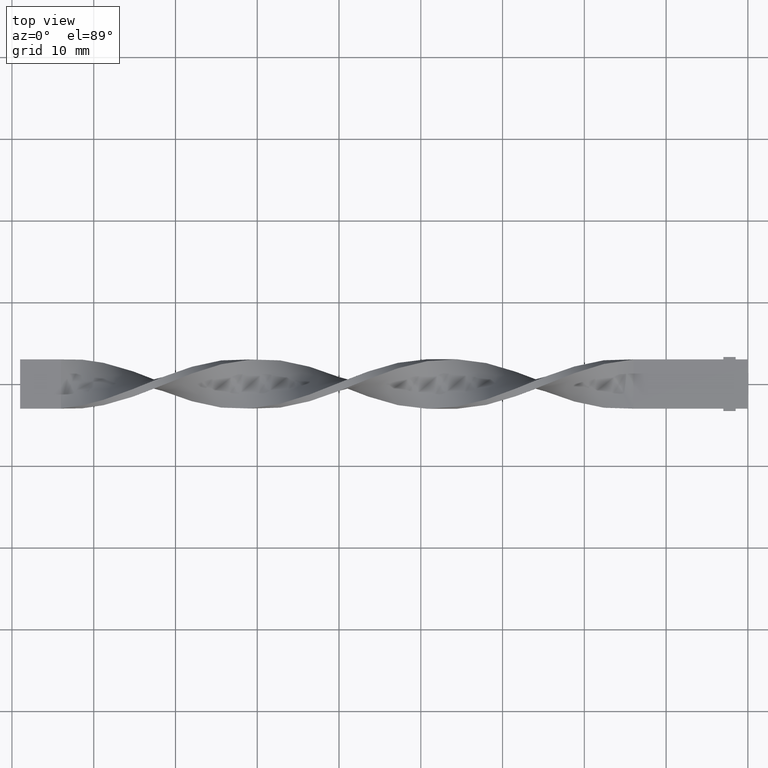
[diagram: clean part render]
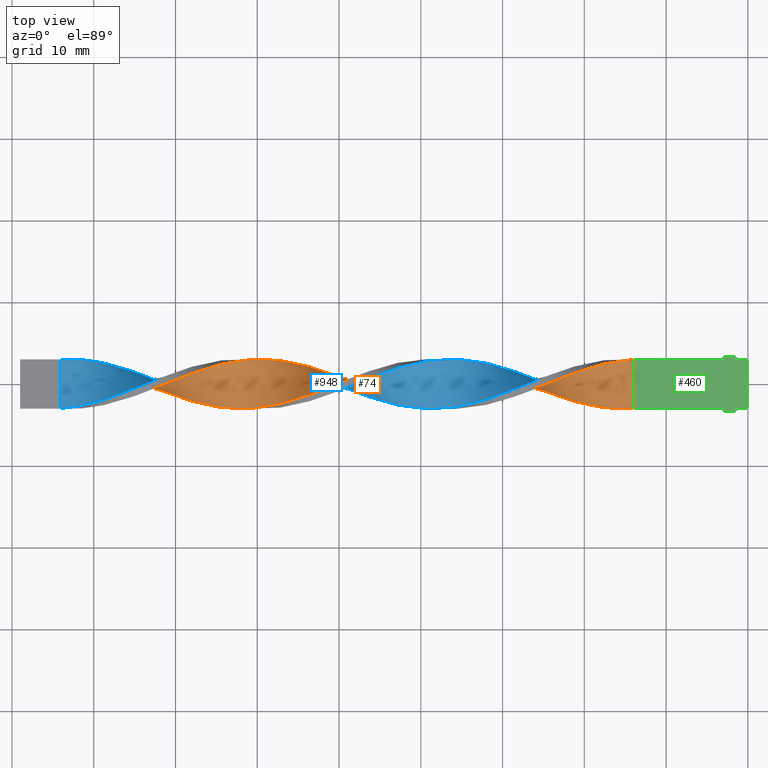
[diagram: same view with three faces highlighted in distinct colors, each labeled with its STEP entity id]
A machine part, top view with three faces highlighted in distinct colors.
Their STEP definitions:

[orange] entity #74 — the highlighted face is a freeform B-spline surface patch.
#5 = CARTESIAN_POINT ( 'NONE',  ( -52.58974358974358410, -0.9584295337030710460, 2.909946448908425243 ) ) ;
#8 = CARTESIAN_POINT ( 'NONE',  ( -57.07692307692307310, 2.888729662981512458, -0.9514415033047024517 ) ) ;
#13 = CARTESIAN_POINT ( 'NONE',  ( -34.64102564102564230, 2.647046231879883305, -1.542569853484617726 ) ) ;
#15 = ORIENTED_EDGE ( 'NONE', *, *, #1461, .F. ) ;
#16 = CARTESIAN_POINT ( 'NONE',  ( -49.00000000000000000, 0.5036723384328409825, -3.022034030597047671 ) ) ;
#19 = CARTESIAN_POINT ( 'NONE',  ( -75.02564102564102200, 0.5963065397848987814, -2.982351171577511728 ) ) ;
#20 = CARTESIAN_POINT ( 'NONE',  ( -51.69230769230769340, -0.5963065397848990035, 2.982351171577511728 ) ) ;
#24 = CARTESIAN_POINT ( 'NONE',  ( -42.71794871794872250, -1.913970915392905869, -2.363623348807935454 ) ) ;
#28 = CARTESIAN_POINT ( 'NONE',  ( -69.64102564102564941, -1.531322782470314392, -2.627746284534975718 ) ) ;
#33 = CARTESIAN_POINT ( 'NONE',  ( -44.51282051282051100, -1.292702307246639037, -2.752983971046546685 ) ) ;
#38 = CARTESIAN_POINT ( 'NONE',  ( -59.76923076923077360, -2.939289008388868307, 0.8642659496667831620 ) ) ;
#40 = CARTESIAN_POINT ( 'NONE',  ( -52.58974358974359120, 1.850388947743476065, -2.441810035334000872 ) ) ;
#44 = CARTESIAN_POINT ( 'NONE',  ( -28.35897435897435770, -1.531322782470313726, 2.627746284534976162 ) ) ;
#48 =( BOUNDED_SURFACE ( )  B_SPLINE_SURFACE ( 1, 2, ( 
 ( #1600, #1491, #376, #358, #1344, #207, #713, #1222, #1148, #273, #905, #1408, #1280, #788, #1290, #636, #1013, #1415, #391, #261, #626, #1269, #1164, #13, #505, #774, #647, #1507, #1261, #518, #764, #537, #1141, #245, #159, #145, #267, #885, #384, #1274, #656, #1135, #398, #5, #1019, #138, #1385, #892, #406, #153, #1391, #38, #782, #251, #1040, #1035, #513, #1534, #1515, #527, #755, #1026, #28, #1520, #897, #130, #641, #1401, #19, #1155, #1525, #912, #1059, #953, #1432, #577, #425, #175, #1078 ),
 ( #63, #1202, #284, #944, #1455, #1548, #72, #670, #1447, #1558, #1334, #561, #797, #571, #1564, #446, #44, #1068, #698, #323, #1316, #834, #1423, #543, #303, #1087, #1299, #293, #197, #815, #1185, #1175, #167, #81, #1211, #432, #416, #805, #920, #929, #55, #662, #313, #825, #552, #1047, #438, #937, #1439, #182, #683, #1540, #1193, #1307, #1327, #191, #691, #1353, #960, #841, #587, #1229, #1095, #1220, #1573, #603, #1581, #233, #1341, #462, #470, #1112, #89, #709, #347, #337, #986, #96, #1597 ) ),
 .UNSPECIFIED., .F., .F., .F. ) 
 B_SPLINE_SURFACE_WITH_KNOTS ( ( 2, 2 ),
 ( 3, 2, 2, 2, 2, 2, 2, 2, 2, 2, 2, 2, 2, 2, 2, 2, 2, 2, 2, 2, 2, 2, 2, 2, 2, 2, 2, 2, 2, 2, 2, 2, 2, 2, 2, 2, 2, 2, 2, 3 ),
 ( 0.000000000000000000, 1.000000000000000000 ),
 ( 0.000000000000000000, 0.01923076923076923184, 0.03846153846153846367, 0.05769230769230769551, 0.07692307692307692735, 0.09615384615384615918, 0.1153846153846153910, 0.1346153846153846090, 0.1538461538461538547, 0.1730769230769230727, 0.1923076923076923184, 0.2115384615384615363, 0.2307692307692307820, 0.2500000000000000000, 0.2692307692307692180, 0.2884615384615384359, 0.3076923076923077094, 0.3269230769230769273, 0.3461538461538461453, 0.3653846153846153633, 0.3846153846153846367, 0.4038461538461538547, 0.4230769230769230727, 0.4423076923076922906, 0.4615384615384615641, 0.4807692307692307820, 0.5000000000000000000, 0.5192307692307692735, 0.5384615384615384359, 0.5576923076923077094, 0.5769230769230768718, 0.5961538461538461453, 0.6153846153846154188, 0.6346153846153845812, 0.6538461538461538547, 0.6730769230769231282, 0.6923076923076922906, 0.7115384615384615641, 0.7307692307692307265, 0.7500000000000000000 ),
 .UNSPECIFIED. ) 
 GEOMETRIC_REPRESENTATION_ITEM ( )  RATIONAL_B_SPLINE_SURFACE ( (
 ( 1.000000000000000000, 0.9927088740980539727, 1.000000000000000000, 0.9927088740980539727, 1.000000000000000000, 0.9927088740980539727, 1.000000000000000000, 0.9927088740980539727, 1.000000000000000000, 0.9927088740980539727, 1.000000000000000000, 0.9927088740980539727, 1.000000000000000000, 0.9927088740980539727, 1.000000000000000000, 0.9927088740980539727, 1.000000000000000000, 0.9927088740980539727, 1.000000000000000000, 0.9927088740980539727, 1.000000000000000000, 0.9927088740980539727, 1.000000000000000000, 0.9927088740980539727, 1.000000000000000000, 0.9927088740980539727, 1.000000000000000000, 0.9927088740980539727, 1.000000000000000000, 0.9927088740980539727, 1.000000000000000000, 0.9927088740980539727, 1.000000000000000000, 0.9927088740980539727, 1.000000000000000000, 0.9927088740980539727, 1.000000000000000000, 0.9927088740980539727, 1.000000000000000000, 0.9927088740980539727, 1.000000000000000000, 0.9927088740980539727, 1.000000000000000000, 0.9927088740980539727, 1.000000000000000000, 0.9927088740980539727, 1.000000000000000000, 0.9927088740980539727, 1.000000000000000000, 0.9927088740980539727, 1.000000000000000000, 0.9927088740980539727, 1.000000000000000000, 0.9927088740980539727, 1.000000000000000000, 0.9927088740980539727, 1.000000000000000000, 0.9927088740980539727, 1.000000000000000000, 0.9927088740980539727, 1.000000000000000000, 0.9927088740980539727, 1.000000000000000000, 0.9927088740980539727, 1.000000000000000000, 0.9927088740980539727, 1.000000000000000000, 0.9927088740980539727, 1.000000000000000000, 0.9927088740980539727, 1.000000000000000000, 0.9927088740980539727, 1.000000000000000000, 0.9927088740980539727, 1.000000000000000000, 0.9927088740980539727, 1.000000000000000000, 0.9927088740980539727, 1.000000000000000000),
 ( 1.000000000000000000, 0.9927088740980539727, 1.000000000000000000, 0.9927088740980539727, 1.000000000000000000, 0.9927088740980539727, 1.000000000000000000, 0.9927088740980539727, 1.000000000000000000, 0.9927088740980539727, 1.000000000000000000, 0.9927088740980539727, 1.000000000000000000, 0.9927088740980539727, 1.000000000000000000, 0.9927088740980539727, 1.000000000000000000, 0.9927088740980539727, 1.000000000000000000, 0.9927088740980539727, 1.000000000000000000, 0.9927088740980539727, 1.000000000000000000, 0.9927088740980539727, 1.000000000000000000, 0.9927088740980539727, 1.000000000000000000, 0.9927088740980539727, 1.000000000000000000, 0.9927088740980539727, 1.000000000000000000, 0.9927088740980539727, 1.000000000000000000, 0.9927088740980539727, 1.000000000000000000, 0.9927088740980539727, 1.000000000000000000, 0.9927088740980539727, 1.000000000000000000, 0.9927088740980539727, 1.000000000000000000, 0.9927088740980539727, 1.000000000000000000, 0.9927088740980539727, 1.000000000000000000, 0.9927088740980539727, 1.000000000000000000, 0.9927088740980539727, 1.000000000000000000, 0.9927088740980539727, 1.000000000000000000, 0.9927088740980539727, 1.000000000000000000, 0.9927088740980539727, 1.000000000000000000, 0.9927088740980539727, 1.000000000000000000, 0.9927088740980539727, 1.000000000000000000, 0.9927088740980539727, 1.000000000000000000, 0.9927088740980539727, 1.000000000000000000, 0.9927088740980539727, 1.000000000000000000, 0.9927088740980539727, 1.000000000000000000, 0.9927088740980539727, 1.000000000000000000, 0.9927088740980539727, 1.000000000000000000, 0.9927088740980539727, 1.000000000000000000, 0.9927088740980539727, 1.000000000000000000, 0.9927088740980539727, 1.000000000000000000, 0.9927088740980539727, 1.000000000000000000) ) ) 
 REPRESENTATION_ITEM ( '' )  SURFACE ( )  );
#55 = CARTESIAN_POINT ( 'NONE',  ( -49.89743589743589069, 0.8579644778149938533, -2.917858282166499784 ) ) ;
#63 = CARTESIAN_POINT ( 'NONE',  ( -13.99999999999999822, 2.999999999999999112, 0.5000000000000000000 ) ) ;
#66 = CARTESIAN_POINT ( 'NONE',  ( -77.71794871794874382, -2.380983398537112272, 1.928028413296781984 ) ) ;
#68 = CARTESIAN_POINT ( 'NONE',  ( -17.58974358974358765, -2.888729662981512902, -0.9514415033047003423 ) ) ;
#72 = CARTESIAN_POINT ( 'NONE',  ( -19.38461538461538325, 1.913970915392905425, 2.363623348807935454 ) ) ;
#74 = ADVANCED_FACE ( 'NONE', ( #605 ), #48, .T. ) ;
#77 = CARTESIAN_POINT ( 'NONE',  ( -78.61538461538461320, -2.577093573633699730, 1.615112600636835261 ) ) ;
#81 = CARTESIAN_POINT ( 'NONE',  ( -43.61538461538461320, -1.626975080790205697, -2.596021493184667239 ) ) ;
#89 = CARTESIAN_POINT ( 'NONE',  ( -78.61538461538461320, -2.577093573633699730, 1.615112600636835261 ) ) ;
#94 = CARTESIAN_POINT ( 'NONE',  ( -41.82051282051281760, 2.773203748730288076, 1.302196787976887205 ) ) ;
#96 = CARTESIAN_POINT ( 'NONE',  ( -83.10256410256410220, -3.060710991611129472, -0.1357340503332171988 ) ) ;
#103 = CARTESIAN_POINT ( 'NONE',  ( -40.92307692307691980, 2.888729662981512902, 0.9514415033047001202 ) ) ;
#104 = CARTESIAN_POINT ( 'NONE',  ( -24.76923076923076650, -0.1347443962830574271, 3.038394962421822942 ) ) ;
#112 = CARTESIAN_POINT ( 'NONE',  ( -82.20512820512820440, 2.793167620134375806, -1.203417901575700055 ) ) ;
#120 = CARTESIAN_POINT ( 'NONE',  ( -36.43589743589743790, 2.939289008388868751, -0.8642659496667828289 ) ) ;
#130 = CARTESIAN_POINT ( 'NONE',  ( -72.33333333333332860, -0.5036723384328416486, -3.022034030597047671 ) ) ;
#133 = CARTESIAN_POINT ( 'NONE',  ( -37.33333333333332860, -2.999999999999999112, -0.4999999999999996669 ) ) ;
#138 = CARTESIAN_POINT ( 'NONE',  ( -54.38461538461538680, -1.626975080790202366, 2.596021493184669016 ) ) ;
#141 = CARTESIAN_POINT ( 'NONE',  ( -40.92307692307691980, -2.424006490937744562, -1.836897528957909920 ) ) ;
#143 = DIRECTION ( 'NONE',  ( 0.000000000000000000, -1.000000000000000000, 0.000000000000000000 ) ) ;
#145 = CARTESIAN_POINT ( 'NONE',  ( -45.41025641025640880, 1.850388947743478729, 2.441810035333998652 ) ) ;
#146 = CARTESIAN_POINT ( 'NONE',  ( -65.15384615384614619, -2.773203748730287632, -1.302196787976887871 ) ) ;
#153 = CARTESIAN_POINT ( 'NONE',  ( -57.97435897435897090, -2.647046231879883305, 1.542569853484618170 ) ) ;
#159 = CARTESIAN_POINT ( 'NONE',  ( -44.51282051282051100, 2.115686173140295168, 2.184919224315390540 ) ) ;
#163 = CARTESIAN_POINT ( 'NONE',  ( -48.10256410256410220, 0.1347443962830564002, -3.038394962421822942 ) ) ;
#167 = CARTESIAN_POINT ( 'NONE',  ( -42.71794871794872250, -1.913970915392905869, -2.363623348807935454 ) ) ;
#173 = CARTESIAN_POINT ( 'NONE',  ( -24.76923076923076650, -0.8579644778149966289, -2.917858282166499340 ) ) ;
#175 = CARTESIAN_POINT ( 'NONE',  ( -83.10256410256410220, 2.939289008388868751, -0.8642659496667827179 ) ) ;
#182 = CARTESIAN_POINT ( 'NONE',  ( -57.97435897435897090, 3.004255577232739061, -0.6006862186325138131 ) ) ;
#191 = CARTESIAN_POINT ( 'NONE',  ( -63.35897435897435770, 2.647046231879884193, 1.542569853484616615 ) ) ;
#192 = VERTEX_POINT ( 'NONE', #594 ) ;
#197 = CARTESIAN_POINT ( 'NONE',  ( -39.12820512820512420, -2.793167620134376694, -1.203417901575698279 ) ) ;
#207 = CARTESIAN_POINT ( 'NONE',  ( -18.48717948717948545, -2.773203748730287632, -1.302196787976887649 ) ) ;
#210 = CARTESIAN_POINT ( 'NONE',  ( -64.25641025641024839, -2.888729662981512902, -0.9514415033047003423 ) ) ;
#217 = EDGE_LOOP ( 'NONE', ( #15, #466, #742, #1270 ) ) ;
#220 = CARTESIAN_POINT ( 'NONE',  ( -47.20512820512820440, 1.212256617197150721, 2.813682533735952340 ) ) ;
#228 = CARTESIAN_POINT ( 'NONE',  ( -75.92307692307691980, 0.9584295337030727113, -2.909946448908425243 ) ) ;
#229 = CARTESIAN_POINT ( 'NONE',  ( -25.66666666666666785, -0.5036723384328412045, 3.022034030597047671 ) ) ;
#233 = CARTESIAN_POINT ( 'NONE',  ( -74.12820512820512420, -1.212256617197150721, 2.813682533735952340 ) ) ;
#235 = CARTESIAN_POINT ( 'NONE',  ( -71.43589743589743080, -0.8579644778149966289, -2.917858282166499340 ) ) ;
#245 = CARTESIAN_POINT ( 'NONE',  ( -43.61538461538461320, 2.380983398537113604, 1.928028413296780430 ) ) ;
#251 = CARTESIAN_POINT ( 'NONE',  ( -61.56410256410256920, -3.060710991611129472, 0.1357340503332185311 ) ) ;
#255 = CARTESIAN_POINT ( 'NONE',  ( -71.43589743589743080, -0.1347443962830574271, 3.038394962421822942 ) ) ;
#261 = CARTESIAN_POINT ( 'NONE',  ( -31.05128205128205821, 1.626975080790203920, -2.596021493184668572 ) ) ;
#262 = CARTESIAN_POINT ( 'NONE',  ( -57.07692307692307310, -2.424006490937743230, 1.836897528957911918 ) ) ;
#264 = CARTESIAN_POINT ( 'NONE',  ( -33.74358974358974450, -2.888729662981512902, 0.9514415033047007864 ) ) ;
#266 = CARTESIAN_POINT ( 'NONE',  ( -13.99999999999999822, 2.999999999999999112, 0.5000000000000000000 ) ) ;
#267 = CARTESIAN_POINT ( 'NONE',  ( -46.30769230769230660, 1.531322782470314836, 2.627746284534975718 ) ) ;
#269 = CARTESIAN_POINT ( 'NONE',  ( -45.41025641025640880, -0.9584295337030747097, -2.909946448908424355 ) ) ;
#273 = CARTESIAN_POINT ( 'NONE',  ( -22.07692307692308376, -1.850388947743477397, -2.441810035334000428 ) ) ;
#277 = CARTESIAN_POINT ( 'NONE',  ( -65.15384615384614619, 2.200966749995605376, 2.131225204431203224 ) ) ;
#284 = CARTESIAN_POINT ( 'NONE',  ( -15.79487179487179205, 2.793167620134376694, 1.203417901575699167 ) ) ;
#293 = CARTESIAN_POINT ( 'NONE',  ( -38.23076923076922640, -2.939289008388868751, -0.8642659496667810526 ) ) ;
#294 = CARTESIAN_POINT ( 'NONE',  ( -83.10256410256410220, 2.939289008388868751, -0.8642659496667828289 ) ) ;
#298 = CARTESIAN_POINT ( 'NONE',  ( -76.82051282051281760, -2.115686173140294724, 2.184919224315390540 ) ) ;
#303 = CARTESIAN_POINT ( 'NONE',  ( -35.53846153846153300, -3.032483284421934044, 0.2324760841496482100 ) ) ;
#313 = CARTESIAN_POINT ( 'NONE',  ( -51.69230769230769340, 1.531322782470313726, -2.627746284534976162 ) ) ;
#323 = CARTESIAN_POINT ( 'NONE',  ( -31.05128205128205821, -2.380983398537112272, 1.928028413296781984 ) ) ;
#324 = CARTESIAN_POINT ( 'NONE',  ( -84.00000000000000000, -2.999999999999999112, -0.4999999999999996669 ) ) ;
#334 = CARTESIAN_POINT ( 'NONE',  ( -66.94871794871795601, -2.380983398537113160, -1.928028413296780874 ) ) ;
#337 = CARTESIAN_POINT ( 'NONE',  ( -81.30769230769233502, -3.004255577232739061, 0.6006862186325132580 ) ) ;
#345 = CARTESIAN_POINT ( 'NONE',  ( -29.25641025641025905, 0.9584295337030727113, -2.909946448908425243 ) ) ;
#347 = CARTESIAN_POINT ( 'NONE',  ( -80.41025641025640880, -2.888729662981512902, 0.9514415033047007864 ) ) ;
#353 = CARTESIAN_POINT ( 'NONE',  ( -77.71794871794874382, 1.626975080790203920, -2.596021493184668572 ) ) ;
#358 = CARTESIAN_POINT ( 'NONE',  ( -16.69230769230769695, -3.004255577232739061, -0.6006862186325124808 ) ) ;
#363 = CARTESIAN_POINT ( 'NONE',  ( -26.56410256410256210, -0.1347443962830584541, -3.038394962421822498 ) ) ;
#373 = CARTESIAN_POINT ( 'NONE',  ( -31.94871794871794535, 1.913970915392904315, -2.363623348807935898 ) ) ;
#376 = CARTESIAN_POINT ( 'NONE',  ( -15.79487179487179205, -3.032483284421934044, -0.2324760841496470720 ) ) ;
#383 = B_SPLINE_CURVE_WITH_KNOTS ( 'NONE', 3,
 ( #1456, #945, #1342, #324 ),
 .UNSPECIFIED., .F., .F.,
 ( 4, 4 ),
 ( 0.000000000000000000, 1.000000000000000000 ),
 .UNSPECIFIED. ) ;
#384 = CARTESIAN_POINT ( 'NONE',  ( -48.10256410256410220, 0.8579644778149976281, 2.917858282166499340 ) ) ;
#387 = CARTESIAN_POINT ( 'NONE',  ( -72.33333333333332860, -0.5036723384328412045, 3.022034030597047671 ) ) ;
#391 = CARTESIAN_POINT ( 'NONE',  ( -30.15384615384615330, 1.292702307246638371, -2.752983971046546685 ) ) ;
#398 = CARTESIAN_POINT ( 'NONE',  ( -51.69230769230769340, -0.5963065397848990035, 2.982351171577511728 ) ) ;
#403 = CARTESIAN_POINT ( 'NONE',  ( -41.82051282051281760, -2.200966749995605820, -2.131225204431203224 ) ) ;
#406 = CARTESIAN_POINT ( 'NONE',  ( -57.07692307692307310, -2.424006490937743230, 1.836897528957911918 ) ) ;
#410 = CARTESIAN_POINT ( 'NONE',  ( -56.17948717948717530, 2.773203748730287632, -1.302196787976888315 ) ) ;
#416 = CARTESIAN_POINT ( 'NONE',  ( -46.30769230769230660, -0.5963065397849001137, -2.982351171577511284 ) ) ;
#418 = VERTEX_POINT ( 'NONE', #1083 ) ;
#419 = CARTESIAN_POINT ( 'NONE',  ( -67.84615384615385381, 1.292702307246639037, 2.752983971046546685 ) ) ;
#425 = CARTESIAN_POINT ( 'NONE',  ( -82.20512820512820440, 2.793167620134375806, -1.203417901575700055 ) ) ;
#428 = CARTESIAN_POINT ( 'NONE',  ( -80.41025641025640880, -2.888729662981512902, 0.9514415033047007864 ) ) ;
#432 = CARTESIAN_POINT ( 'NONE',  ( -45.41025641025640880, -0.9584295337030748207, -2.909946448908423910 ) ) ;
#438 = CARTESIAN_POINT ( 'NONE',  ( -55.28205128205128460, 2.577093573633699286, -1.615112600636835483 ) ) ;
#441 = CARTESIAN_POINT ( 'NONE',  ( -81.30769230769232081, -3.004255577232739061, 0.6006862186325134800 ) ) ;
#446 = CARTESIAN_POINT ( 'NONE',  ( -27.46153846153846345, -1.212256617197150721, 2.813682533735952340 ) ) ;
#450 = CARTESIAN_POINT ( 'NONE',  ( -83.10256410256410220, -3.060710991611129472, -0.1357340503332171711 ) ) ;
#462 = CARTESIAN_POINT ( 'NONE',  ( -75.92307692307693401, -1.850388947743477175, 2.441810035334000428 ) ) ;
#466 = ORIENTED_EDGE ( 'NONE', *, *, #1101, .T. ) ;
#468 = CARTESIAN_POINT ( 'NONE',  ( -72.33333333333332860, -0.5036723384328416486, -3.022034030597047671 ) ) ;
#470 = CARTESIAN_POINT ( 'NONE',  ( -76.82051282051281760, -2.115686173140294724, 2.184919224315390540 ) ) ;
#477 = CARTESIAN_POINT ( 'NONE',  ( -57.97435897435897090, -2.647046231879883305, 1.542569853484617948 ) ) ;
#487 = CARTESIAN_POINT ( 'NONE',  ( -61.56410256410256920, -3.060710991611129472, 0.1357340503332185033 ) ) ;
#495 = CARTESIAN_POINT ( 'NONE',  ( -44.51282051282051100, 2.115686173140295168, 2.184919224315390540 ) ) ;
#501 = CARTESIAN_POINT ( 'NONE',  ( -18.48717948717948545, 2.200966749995605376, 2.131225204431203224 ) ) ;
#505 = CARTESIAN_POINT ( 'NONE',  ( -35.53846153846153300, 2.793167620134375806, -1.203417901575700055 ) ) ;
#509 = CARTESIAN_POINT ( 'NONE',  ( -32.84615384615384670, -2.773203748730287632, 1.302196787976888093 ) ) ;
#513 = CARTESIAN_POINT ( 'NONE',  ( -64.25641025641024839, -2.888729662981512902, -0.9514415033047003423 ) ) ;
#518 = CARTESIAN_POINT ( 'NONE',  ( -40.02564102564102200, 3.004255577232739505, 0.6006862186325113706 ) ) ;
#522 = CARTESIAN_POINT ( 'NONE',  ( -50.79487179487178850, 1.212256617197149611, -2.813682533735953228 ) ) ;
#527 = CARTESIAN_POINT ( 'NONE',  ( -66.94871794871794179, -2.380983398537113160, -1.928028413296780874 ) ) ;
#537 = CARTESIAN_POINT ( 'NONE',  ( -41.82051282051281760, 2.773203748730288076, 1.302196787976887205 ) ) ;
#539 = CARTESIAN_POINT ( 'NONE',  ( -64.25641025641024839, 2.424006490937744562, 1.836897528957910142 ) ) ;
#543 = CARTESIAN_POINT ( 'NONE',  ( -34.64102564102564230, -3.004255577232739061, 0.6006862186325132580 ) ) ;
#546 = CARTESIAN_POINT ( 'NONE',  ( -75.92307692307691980, -1.850388947743477397, 2.441810035334000428 ) ) ;
#552 = CARTESIAN_POINT ( 'NONE',  ( -53.48717948717948900, 2.115686173140294724, -2.184919224315391428 ) ) ;
#555 = CARTESIAN_POINT ( 'NONE',  ( -82.20512820512820440, -3.032483284421934044, 0.2324760841496482100 ) ) ;
#561 = CARTESIAN_POINT ( 'NONE',  ( -23.87179487179487580, 0.2341835458667257397, 3.054755894246597769 ) ) ;
#562 = EDGE_CURVE ( 'NONE', #192, #766, #888, .T. ) ;
#568 = CARTESIAN_POINT ( 'NONE',  ( -18.48717948717948545, -2.773203748730287632, -1.302196787976887871 ) ) ;
#569 = CARTESIAN_POINT ( 'NONE',  ( -14.89743589743589602, 2.939289008388868751, 0.8642659496667816077 ) ) ;
#571 = CARTESIAN_POINT ( 'NONE',  ( -25.66666666666666785, -0.5036723384328412045, 3.022034030597047671 ) ) ;
#577 = CARTESIAN_POINT ( 'NONE',  ( -81.30769230769233502, 2.647046231879883305, -1.542569853484617726 ) ) ;
#587 = CARTESIAN_POINT ( 'NONE',  ( -67.84615384615385381, 1.292702307246639037, 2.752983971046546685 ) ) ;
#591 = CARTESIAN_POINT ( 'NONE',  ( -67.84615384615385381, -2.115686173140295168, -2.184919224315390540 ) ) ;
#594 = CARTESIAN_POINT ( 'NONE',  ( -13.99999999999999822, -2.999999999999999112, 0.5000000000000000000 ) ) ;
#599 = CARTESIAN_POINT ( 'NONE',  ( -27.46153846153846345, 0.2341835458667254066, -3.054755894246597769 ) ) ;
#603 = CARTESIAN_POINT ( 'NONE',  ( -72.33333333333332860, -0.5036723384328412045, 3.022034030597047671 ) ) ;
#605 = FACE_OUTER_BOUND ( 'NONE', #217, .T. ) ;
#607 = CARTESIAN_POINT ( 'NONE',  ( -35.53846153846153300, 2.793167620134375806, -1.203417901575700055 ) ) ;
#615 = CARTESIAN_POINT ( 'NONE',  ( -33.74358974358974450, 2.424006490937744562, -1.836897528957910586 ) ) ;
#626 = CARTESIAN_POINT ( 'NONE',  ( -31.94871794871794535, 1.913970915392904315, -2.363623348807935898 ) ) ;
#630 = CARTESIAN_POINT ( 'NONE',  ( -69.64102564102564941, 0.5963065397848997806, 2.982351171577511284 ) ) ;
#636 = CARTESIAN_POINT ( 'NONE',  ( -27.46153846153846345, 0.2341835458667254066, -3.054755894246597769 ) ) ;
#639 = CARTESIAN_POINT ( 'NONE',  ( -46.30769230769230660, -0.5963065397849001137, -2.982351171577511284 ) ) ;
#641 = CARTESIAN_POINT ( 'NONE',  ( -73.23076923076924061, -0.1347443962830584541, -3.038394962421822498 ) ) ;
#642 = CARTESIAN_POINT ( 'NONE',  ( -43.61538461538461320, 2.380983398537114049, 1.928028413296780430 ) ) ;
#647 = CARTESIAN_POINT ( 'NONE',  ( -37.33333333333332860, 2.999999999999999112, -0.5000000000000003331 ) ) ;
#649 = CARTESIAN_POINT ( 'NONE',  ( -84.00000000000000000, 2.999999999999999112, -0.5000000000000003331 ) ) ;
#651 = VERTEX_POINT ( 'NONE', #1194 ) ;
#652 = CARTESIAN_POINT ( 'NONE',  ( -36.43589743589743790, -3.060710991611129472, -0.1357340503332171711 ) ) ;
#656 = CARTESIAN_POINT ( 'NONE',  ( -49.89743589743589069, 0.1347443962830601472, 3.038394962421822498 ) ) ;
#658 = CARTESIAN_POINT ( 'NONE',  ( -58.87179487179486870, 3.032483284421933600, -0.2324760841496498753 ) ) ;
#662 = CARTESIAN_POINT ( 'NONE',  ( -50.79487179487178850, 1.212256617197149611, -2.813682533735953228 ) ) ;
#670 = CARTESIAN_POINT ( 'NONE',  ( -20.28205128205128460, 1.626975080790204808, 2.596021493184667683 ) ) ;
#683 = CARTESIAN_POINT ( 'NONE',  ( -58.87179487179486870, 3.032483284421933600, -0.2324760841496498753 ) ) ;
#687 = CARTESIAN_POINT ( 'NONE',  ( -13.99999999999999822, -2.999999999999999112, 0.5000000000000000000 ) ) ;
#688 = CARTESIAN_POINT ( 'NONE',  ( -13.99999999999999822, 2.999999999999999112, 0.5000000000000000000 ) ) ;
#691 = CARTESIAN_POINT ( 'NONE',  ( -64.25641025641024839, 2.424006490937744562, 1.836897528957910142 ) ) ;
#694 = CARTESIAN_POINT ( 'NONE',  ( -14.89743589743589602, -3.060710991611129472, 0.1357340503332185033 ) ) ;
#698 = CARTESIAN_POINT ( 'NONE',  ( -30.15384615384615330, -2.115686173140294724, 2.184919224315390540 ) ) ;
#709 = CARTESIAN_POINT ( 'NONE',  ( -79.51282051282051100, -2.773203748730287632, 1.302196787976887871 ) ) ;
#713 = CARTESIAN_POINT ( 'NONE',  ( -19.38461538461538325, -2.577093573633700174, -1.615112600636833928 ) ) ;
#716 = CARTESIAN_POINT ( 'NONE',  ( -70.53846153846153300, -1.212256617197150943, -2.813682533735952340 ) ) ;
#723 = CARTESIAN_POINT ( 'NONE',  ( -49.89743589743589069, 0.1347443962830601472, 3.038394962421822498 ) ) ;
#724 = CARTESIAN_POINT ( 'NONE',  ( -22.07692307692308020, 0.9584295337030730444, 2.909946448908425243 ) ) ;
#732 = CARTESIAN_POINT ( 'NONE',  ( -80.41025641025640880, 2.424006490937744562, -1.836897528957910586 ) ) ;
#733 = CARTESIAN_POINT ( 'NONE',  ( -26.56410256410256210, -0.8579644778149956297, 2.917858282166499784 ) ) ;
#742 = ORIENTED_EDGE ( 'NONE', *, *, #861, .F. ) ;
#744 = CARTESIAN_POINT ( 'NONE',  ( -76.82051282051281760, 1.292702307246638371, -2.752983971046546685 ) ) ;
#755 = CARTESIAN_POINT ( 'NONE',  ( -67.84615384615385381, -2.115686173140295168, -2.184919224315390540 ) ) ;
#764 = CARTESIAN_POINT ( 'NONE',  ( -40.92307692307691980, 2.888729662981512902, 0.9514415033047001202 ) ) ;
#766 = VERTEX_POINT ( 'NONE', #1292 ) ;
#768 = CARTESIAN_POINT ( 'NONE',  ( -74.12820512820510999, -1.212256617197150721, 2.813682533735952340 ) ) ;
#774 = CARTESIAN_POINT ( 'NONE',  ( -36.43589743589743790, 2.939289008388868751, -0.8642659496667827179 ) ) ;
#775 = CARTESIAN_POINT ( 'NONE',  ( -62.46153846153845990, -3.032483284421934044, -0.2324760841496470720 ) ) ;
#777 = CARTESIAN_POINT ( 'NONE',  ( -43.61538461538461320, -1.626975080790205919, -2.596021493184667239 ) ) ;
#782 = CARTESIAN_POINT ( 'NONE',  ( -60.66666666666666430, -2.999999999999999112, 0.5000000000000000000 ) ) ;
#785 = CARTESIAN_POINT ( 'NONE',  ( -61.56410256410256920, 2.939289008388868751, 0.8642659496667816077 ) ) ;
#788 = CARTESIAN_POINT ( 'NONE',  ( -25.66666666666666785, -0.5036723384328416486, -3.022034030597047671 ) ) ;
#797 = CARTESIAN_POINT ( 'NONE',  ( -24.76923076923076650, -0.1347443962830574271, 3.038394962421822942 ) ) ;
#801 = CARTESIAN_POINT ( 'NONE',  ( -23.87179487179487580, -1.212256617197150943, -2.813682533735952340 ) ) ;
#805 = CARTESIAN_POINT ( 'NONE',  ( -47.20512820512820440, -0.2341835458667255176, -3.054755894246597769 ) ) ;
#810 = CARTESIAN_POINT ( 'NONE',  ( -79.51282051282051100, -2.773203748730287632, 1.302196787976888093 ) ) ;
#815 = CARTESIAN_POINT ( 'NONE',  ( -40.02564102564102200, -2.647046231879884637, -1.542569853484615505 ) ) ;
#819 = CARTESIAN_POINT ( 'NONE',  ( -84.00000000000000000, -2.999999999999999112, -0.4999999999999996669 ) ) ;
#825 = CARTESIAN_POINT ( 'NONE',  ( -52.58974358974358410, 1.850388947743476065, -2.441810035334000872 ) ) ;
#834 = CARTESIAN_POINT ( 'NONE',  ( -32.84615384615384670, -2.773203748730287632, 1.302196787976887871 ) ) ;
#841 = CARTESIAN_POINT ( 'NONE',  ( -66.94871794871794179, 1.626975080790204808, 2.596021493184667683 ) ) ;
#846 = CARTESIAN_POINT ( 'NONE',  ( -55.28205128205128460, -1.913970915392903871, 2.363623348807935898 ) ) ;
#855 = CARTESIAN_POINT ( 'NONE',  ( -38.23076923076922640, 3.060710991611129472, -0.1357340503332191972 ) ) ;
#861 = EDGE_CURVE ( 'NONE', #766, #651, #383, .T. ) ;
#862 = CARTESIAN_POINT ( 'NONE',  ( -40.02564102564102200, 3.004255577232739505, 0.6006862186325113706 ) ) ;
#871 = CARTESIAN_POINT ( 'NONE',  ( -56.17948717948717530, -2.200966749995605376, 2.131225204431204112 ) ) ;
#878 = CARTESIAN_POINT ( 'NONE',  ( -39.12820512820512420, 3.032483284421934044, 0.2324760841496460451 ) ) ;
#879 = CARTESIAN_POINT ( 'NONE',  ( -29.25641025641025905, -1.850388947743477397, 2.441810035334000428 ) ) ;
#885 = CARTESIAN_POINT ( 'NONE',  ( -47.20512820512820440, 1.212256617197150721, 2.813682533735952340 ) ) ;
#888 =( BOUNDED_CURVE ( )  B_SPLINE_CURVE ( 2, ( #687, #694, #1459, #1198, #68, #568, #1074, #1562, #1338, #949, #1428, #801, #173, #1125, #363, #599, #1493, #345, #1108, #1234, #373, #1358, #615, #963, #607, #120, #1602, #855, #878, #862, #103, #94, #1348, #642, #495, #1594, #1498, #220, #1150, #972, #723, #1402, #20, #1275, #1116, #1612, #846, #871, #262, #477, #999, #982, #1373, #487, #775, #992, #210, #146, #1468, #334, #591, #1478, #1586, #716, #235, #468, #1226, #1099, #1486, #228, #744, #353, #1366, #1252, #732, #1242, #112, #294, #649 ),
 .UNSPECIFIED., .F., .T. ) 
 B_SPLINE_CURVE_WITH_KNOTS ( ( 3, 2, 2, 2, 2, 2, 2, 2, 2, 2, 2, 2, 2, 2, 2, 2, 2, 2, 2, 2, 2, 2, 2, 2, 2, 2, 2, 2, 2, 2, 2, 2, 2, 2, 2, 2, 2, 2, 2, 3 ),
 ( 0.000000000000000000, 0.01923076923076923184, 0.03846153846153846367, 0.05769230769230768857, 0.07692307692307692735, 0.09615384615384615918, 0.1153846153846153771, 0.1346153846153846090, 0.1538461538461538547, 0.1730769230769230449, 0.1923076923076923184, 0.2115384615384615363, 0.2307692307692307543, 0.2500000000000000000, 0.2692307692307692180, 0.2884615384615384359, 0.3076923076923077094, 0.3269230769230769273, 0.3461538461538460898, 0.3653846153846153633, 0.3846153846153846367, 0.4038461538461539102, 0.4230769230769230727, 0.4423076923076922906, 0.4615384615384615086, 0.4807692307692307820, 0.5000000000000000000, 0.5192307692307692735, 0.5384615384615384359, 0.5576923076923077094, 0.5769230769230768718, 0.5961538461538461453, 0.6153846153846154188, 0.6346153846153845812, 0.6538461538461538547, 0.6730769230769230171, 0.6923076923076921796, 0.7115384615384615641, 0.7307692307692307265, 0.7500000000000000000 ),
 .UNSPECIFIED. ) 
 CURVE ( )  GEOMETRIC_REPRESENTATION_ITEM ( )  RATIONAL_B_SPLINE_CURVE ( ( 1.000000000000000000, 0.9927088740980539727, 1.000000000000000000, 0.9927088740980539727, 1.000000000000000000, 0.9927088740980539727, 1.000000000000000000, 0.9927088740980539727, 1.000000000000000000, 0.9927088740980539727, 1.000000000000000000, 0.9927088740980539727, 1.000000000000000000, 0.9927088740980539727, 1.000000000000000000, 0.9927088740980539727, 1.000000000000000000, 0.9927088740980539727, 1.000000000000000000, 0.9927088740980539727, 1.000000000000000000, 0.9927088740980539727, 1.000000000000000000, 0.9927088740980539727, 1.000000000000000000, 0.9927088740980539727, 1.000000000000000000, 0.9927088740980539727, 1.000000000000000000, 0.9927088740980539727, 1.000000000000000000, 0.9927088740980539727, 1.000000000000000000, 0.9927088740980539727, 1.000000000000000000, 0.9927088740980539727, 1.000000000000000000, 0.9927088740980539727, 1.000000000000000000, 0.9927088740980539727, 1.000000000000000000, 0.9927088740980539727, 1.000000000000000000, 0.9927088740980539727, 1.000000000000000000, 0.9927088740980539727, 1.000000000000000000, 0.9927088740980539727, 1.000000000000000000, 0.9927088740980539727, 1.000000000000000000, 0.9927088740980539727, 1.000000000000000000, 0.9927088740980539727, 1.000000000000000000, 0.9927088740980539727, 1.000000000000000000, 0.9927088740980539727, 1.000000000000000000, 0.9927088740980539727, 1.000000000000000000, 0.9927088740980539727, 1.000000000000000000, 0.9927088740980539727, 1.000000000000000000, 0.9927088740980539727, 1.000000000000000000, 0.9927088740980539727, 1.000000000000000000, 0.9927088740980539727, 1.000000000000000000, 0.9927088740980539727, 1.000000000000000000, 0.9927088740980539727, 1.000000000000000000, 0.9927088740980539727, 1.000000000000000000, 0.9927088740980539727, 1.000000000000000000 ) ) 
 REPRESENTATION_ITEM ( '' )  );
#892 = CARTESIAN_POINT ( 'NONE',  ( -56.17948717948717530, -2.200966749995605376, 2.131225204431204112 ) ) ;
#895 = CARTESIAN_POINT ( 'NONE',  ( -73.23076923076924061, -0.8579644778149956297, 2.917858282166499784 ) ) ;
#897 = CARTESIAN_POINT ( 'NONE',  ( -71.43589743589743080, -0.8579644778149966289, -2.917858282166499340 ) ) ;
#901 = CARTESIAN_POINT ( 'NONE',  ( -34.64102564102564230, -3.004255577232739061, 0.6006862186325134800 ) ) ;
#905 = CARTESIAN_POINT ( 'NONE',  ( -22.97435897435897090, -1.531322782470314392, -2.627746284534975718 ) ) ;
#908 = CARTESIAN_POINT ( 'NONE',  ( -55.28205128205128460, 2.577093573633699286, -1.615112600636835483 ) ) ;
#912 = CARTESIAN_POINT ( 'NONE',  ( -77.71794871794872961, 1.626975080790203920, -2.596021493184668572 ) ) ;
#916 = CARTESIAN_POINT ( 'NONE',  ( -60.66666666666666430, 2.999999999999999112, 0.5000000000000000000 ) ) ;
#920 = CARTESIAN_POINT ( 'NONE',  ( -48.10256410256410220, 0.1347443962830564002, -3.038394962421822942 ) ) ;
#922 = CARTESIAN_POINT ( 'NONE',  ( -31.94871794871794535, -2.577093573633699730, 1.615112600636835261 ) ) ;
#929 = CARTESIAN_POINT ( 'NONE',  ( -49.00000000000000711, 0.5036723384328408715, -3.022034030597047671 ) ) ;
#937 = CARTESIAN_POINT ( 'NONE',  ( -56.17948717948717530, 2.773203748730287632, -1.302196787976888315 ) ) ;
#944 = CARTESIAN_POINT ( 'NONE',  ( -16.69230769230769695, 2.647046231879884193, 1.542569853484616615 ) ) ;
#945 = CARTESIAN_POINT ( 'NONE',  ( -84.00000000000000000, 1.000000000000000000, -0.5000000000000001110 ) ) ;
#949 = CARTESIAN_POINT ( 'NONE',  ( -22.07692307692308020, -1.850388947743477619, -2.441810035334000428 ) ) ;
#950 = CARTESIAN_POINT ( 'NONE',  ( -16.69230769230769340, 2.647046231879884193, 1.542569853484616615 ) ) ;
#953 = CARTESIAN_POINT ( 'NONE',  ( -79.51282051282051100, 2.200966749995605376, -2.131225204431203668 ) ) ;
#960 = CARTESIAN_POINT ( 'NONE',  ( -66.05128205128204399, 1.913970915392905425, 2.363623348807935454 ) ) ;
#963 = CARTESIAN_POINT ( 'NONE',  ( -34.64102564102564230, 2.647046231879883305, -1.542569853484617504 ) ) ;
#972 = CARTESIAN_POINT ( 'NONE',  ( -49.00000000000000000, 0.5036723384328419817, 3.022034030597047671 ) ) ;
#973 = CARTESIAN_POINT ( 'NONE',  ( -20.28205128205128460, 1.626975080790205030, 2.596021493184667683 ) ) ;
#982 = CARTESIAN_POINT ( 'NONE',  ( -59.76923076923076650, -2.939289008388868307, 0.8642659496667832730 ) ) ;
#986 = CARTESIAN_POINT ( 'NONE',  ( -82.20512820512820440, -3.032483284421934044, 0.2324760841496482100 ) ) ;
#992 = CARTESIAN_POINT ( 'NONE',  ( -63.35897435897436480, -3.004255577232739061, -0.6006862186325124808 ) ) ;
#999 = CARTESIAN_POINT ( 'NONE',  ( -58.87179487179486870, -2.793167620134375362, 1.203417901575701610 ) ) ;
#1000 = CARTESIAN_POINT ( 'NONE',  ( -28.35897435897435770, -1.531322782470313726, 2.627746284534976162 ) ) ;
#1013 = CARTESIAN_POINT ( 'NONE',  ( -28.35897435897435770, 0.5963065397848987814, -2.982351171577511728 ) ) ;
#1016 = CARTESIAN_POINT ( 'NONE',  ( -66.05128205128204399, 1.913970915392905425, 2.363623348807935454 ) ) ;
#1019 = CARTESIAN_POINT ( 'NONE',  ( -53.48717948717948900, -1.292702307246637927, 2.752983971046546685 ) ) ;
#1022 = CARTESIAN_POINT ( 'NONE',  ( -70.53846153846153300, 0.2341835458667257397, 3.054755894246597769 ) ) ;
#1026 = CARTESIAN_POINT ( 'NONE',  ( -68.74358974358973740, -1.850388947743477397, -2.441810035334000428 ) ) ;
#1035 = CARTESIAN_POINT ( 'NONE',  ( -63.35897435897435770, -3.004255577232739061, -0.6006862186325124808 ) ) ;
#1037 = CARTESIAN_POINT ( 'NONE',  ( -40.02564102564102200, -2.647046231879884637, -1.542569853484615505 ) ) ;
#1040 = CARTESIAN_POINT ( 'NONE',  ( -62.46153846153845990, -3.032483284421934044, -0.2324760841496470720 ) ) ;
#1047 = CARTESIAN_POINT ( 'NONE',  ( -54.38461538461538680, 2.380983398537111384, -1.928028413296783095 ) ) ;
#1059 = CARTESIAN_POINT ( 'NONE',  ( -78.61538461538461320, 1.913970915392904315, -2.363623348807935898 ) ) ;
#1068 = CARTESIAN_POINT ( 'NONE',  ( -29.25641025641025905, -1.850388947743477175, 2.441810035334000428 ) ) ;
#1074 = CARTESIAN_POINT ( 'NONE',  ( -19.38461538461538325, -2.577093573633700174, -1.615112600636833928 ) ) ;
#1078 = CARTESIAN_POINT ( 'NONE',  ( -84.00000000000000000, 2.999999999999999112, -0.5000000000000003331 ) ) ;
#1083 = CARTESIAN_POINT ( 'NONE',  ( -13.99999999999999822, 2.999999999999999112, 0.5000000000000000000 ) ) ;
#1087 = CARTESIAN_POINT ( 'NONE',  ( -36.43589743589743790, -3.060710991611129472, -0.1357340503332171988 ) ) ;
#1095 = CARTESIAN_POINT ( 'NONE',  ( -69.64102564102564941, 0.5963065397848997806, 2.982351171577511284 ) ) ;
#1099 = CARTESIAN_POINT ( 'NONE',  ( -74.12820512820510999, 0.2341835458667254066, -3.054755894246597769 ) ) ;
#1101 = EDGE_CURVE ( 'NONE', #418, #651, #1224, .T. ) ;
#1108 = CARTESIAN_POINT ( 'NONE',  ( -30.15384615384615330, 1.292702307246638371, -2.752983971046546685 ) ) ;
#1112 = CARTESIAN_POINT ( 'NONE',  ( -77.71794871794872961, -2.380983398537112272, 1.928028413296781984 ) ) ;
#1116 = CARTESIAN_POINT ( 'NONE',  ( -53.48717948717948900, -1.292702307246637927, 2.752983971046546685 ) ) ;
#1117 = CARTESIAN_POINT ( 'NONE',  ( -27.46153846153846345, -1.212256617197150721, 2.813682533735952340 ) ) ;
#1125 = CARTESIAN_POINT ( 'NONE',  ( -25.66666666666666785, -0.5036723384328416486, -3.022034030597047671 ) ) ;
#1135 = CARTESIAN_POINT ( 'NONE',  ( -50.79487179487178850, -0.2341835458667242409, 3.054755894246597769 ) ) ;
#1138 = CARTESIAN_POINT ( 'NONE',  ( -51.69230769230769340, 1.531322782470313726, -2.627746284534976162 ) ) ;
#1141 = CARTESIAN_POINT ( 'NONE',  ( -42.71794871794872250, 2.577093573633700618, 1.615112600636833928 ) ) ;
#1148 = CARTESIAN_POINT ( 'NONE',  ( -21.17948717948717885, -2.115686173140295168, -2.184919224315390540 ) ) ;
#1150 = CARTESIAN_POINT ( 'NONE',  ( -48.10256410256410220, 0.8579644778149976281, 2.917858282166499340 ) ) ;
#1155 = CARTESIAN_POINT ( 'NONE',  ( -75.92307692307693401, 0.9584295337030727113, -2.909946448908424799 ) ) ;
#1159 = CARTESIAN_POINT ( 'NONE',  ( -57.97435897435897090, 3.004255577232739061, -0.6006862186325138131 ) ) ;
#1164 = CARTESIAN_POINT ( 'NONE',  ( -33.74358974358974450, 2.424006490937744562, -1.836897528957910586 ) ) ;
#1170 = CARTESIAN_POINT ( 'NONE',  ( -47.20512820512820440, -0.2341835458667255176, -3.054755894246597769 ) ) ;
#1175 = CARTESIAN_POINT ( 'NONE',  ( -41.82051282051281760, -2.200966749995605820, -2.131225204431203224 ) ) ;
#1185 = CARTESIAN_POINT ( 'NONE',  ( -40.92307692307691980, -2.424006490937744562, -1.836897528957909920 ) ) ;
#1193 = CARTESIAN_POINT ( 'NONE',  ( -60.66666666666666430, 2.999999999999999112, 0.5000000000000000000 ) ) ;
#1194 = CARTESIAN_POINT ( 'NONE',  ( -84.00000000000000000, -2.999999999999999112, -0.4999999999999996669 ) ) ;
#1198 = CARTESIAN_POINT ( 'NONE',  ( -16.69230769230769340, -3.004255577232739061, -0.6006862186325124808 ) ) ;
#1202 = CARTESIAN_POINT ( 'NONE',  ( -14.89743589743589602, 2.939289008388868751, 0.8642659496667817187 ) ) ;
#1211 = CARTESIAN_POINT ( 'NONE',  ( -44.51282051282051100, -1.292702307246639037, -2.752983971046546685 ) ) ;
#1220 = CARTESIAN_POINT ( 'NONE',  ( -70.53846153846153300, 0.2341835458667257397, 3.054755894246597769 ) ) ;
#1222 = CARTESIAN_POINT ( 'NONE',  ( -20.28205128205128460, -2.380983398537113160, -1.928028413296780874 ) ) ;
#1224 =( BOUNDED_CURVE ( )  B_SPLINE_CURVE ( 2, ( #688, #569, #1563, #950, #1587, #501, #1253, #973, #1479, #724, #1603, #1235, #104, #229, #733, #1117, #1000, #879, #1381, #1286, #922, #509, #264, #901, #1278, #652, #133, #1509, #1412, #1037, #141, #403, #24, #777, #33, #269, #639, #1170, #163, #16, #1427, #522, #1138, #40, #1264, #1535, #908, #410, #8, #1159, #658, #1523, #916, #785, #1530, #1420, #539, #277, #1016, #1296, #419, #1271, #630, #1022, #255, #387, #895, #768, #1396, #546, #298, #66, #77, #810, #428, #441, #555, #450, #819 ),
 .UNSPECIFIED., .F., .T. ) 
 B_SPLINE_CURVE_WITH_KNOTS ( ( 3, 2, 2, 2, 2, 2, 2, 2, 2, 2, 2, 2, 2, 2, 2, 2, 2, 2, 2, 2, 2, 2, 2, 2, 2, 2, 2, 2, 2, 2, 2, 2, 2, 2, 2, 2, 2, 2, 2, 3 ),
 ( 0.000000000000000000, 0.01923076923076923184, 0.03846153846153846367, 0.05769230769230768857, 0.07692307692307692735, 0.09615384615384615918, 0.1153846153846153771, 0.1346153846153846090, 0.1538461538461538547, 0.1730769230769230449, 0.1923076923076923184, 0.2115384615384615363, 0.2307692307692307543, 0.2500000000000000000, 0.2692307692307692180, 0.2884615384615384359, 0.3076923076923077094, 0.3269230769230769273, 0.3461538461538460898, 0.3653846153846153633, 0.3846153846153846367, 0.4038461538461539102, 0.4230769230769230727, 0.4423076923076922906, 0.4615384615384615086, 0.4807692307692307820, 0.5000000000000000000, 0.5192307692307692735, 0.5384615384615384359, 0.5576923076923077094, 0.5769230769230768718, 0.5961538461538461453, 0.6153846153846154188, 0.6346153846153845812, 0.6538461538461538547, 0.6730769230769230171, 0.6923076923076921796, 0.7115384615384615641, 0.7307692307692307265, 0.7500000000000000000 ),
 .UNSPECIFIED. ) 
 CURVE ( )  GEOMETRIC_REPRESENTATION_ITEM ( )  RATIONAL_B_SPLINE_CURVE ( ( 1.000000000000000000, 0.9927088740980539727, 1.000000000000000000, 0.9927088740980539727, 1.000000000000000000, 0.9927088740980539727, 1.000000000000000000, 0.9927088740980539727, 1.000000000000000000, 0.9927088740980539727, 1.000000000000000000, 0.9927088740980539727, 1.000000000000000000, 0.9927088740980539727, 1.000000000000000000, 0.9927088740980539727, 1.000000000000000000, 0.9927088740980539727, 1.000000000000000000, 0.9927088740980539727, 1.000000000000000000, 0.9927088740980539727, 1.000000000000000000, 0.9927088740980539727, 1.000000000000000000, 0.9927088740980539727, 1.000000000000000000, 0.9927088740980539727, 1.000000000000000000, 0.9927088740980539727, 1.000000000000000000, 0.9927088740980539727, 1.000000000000000000, 0.9927088740980539727, 1.000000000000000000, 0.9927088740980539727, 1.000000000000000000, 0.9927088740980539727, 1.000000000000000000, 0.9927088740980539727, 1.000000000000000000, 0.9927088740980539727, 1.000000000000000000, 0.9927088740980539727, 1.000000000000000000, 0.9927088740980539727, 1.000000000000000000, 0.9927088740980539727, 1.000000000000000000, 0.9927088740980539727, 1.000000000000000000, 0.9927088740980539727, 1.000000000000000000, 0.9927088740980539727, 1.000000000000000000, 0.9927088740980539727, 1.000000000000000000, 0.9927088740980539727, 1.000000000000000000, 0.9927088740980539727, 1.000000000000000000, 0.9927088740980539727, 1.000000000000000000, 0.9927088740980539727, 1.000000000000000000, 0.9927088740980539727, 1.000000000000000000, 0.9927088740980539727, 1.000000000000000000, 0.9927088740980539727, 1.000000000000000000, 0.9927088740980539727, 1.000000000000000000, 0.9927088740980539727, 1.000000000000000000, 0.9927088740980539727, 1.000000000000000000, 0.9927088740980539727, 1.000000000000000000 ) ) 
 REPRESENTATION_ITEM ( '' )  );
#1226 = CARTESIAN_POINT ( 'NONE',  ( -73.23076923076924061, -0.1347443962830584541, -3.038394962421822498 ) ) ;
#1229 = CARTESIAN_POINT ( 'NONE',  ( -68.74358974358973740, 0.9584295337030730444, 2.909946448908424799 ) ) ;
#1234 = CARTESIAN_POINT ( 'NONE',  ( -31.05128205128205465, 1.626975080790203920, -2.596021493184668572 ) ) ;
#1235 = CARTESIAN_POINT ( 'NONE',  ( -23.87179487179487580, 0.2341835458667257397, 3.054755894246597769 ) ) ;
#1242 = CARTESIAN_POINT ( 'NONE',  ( -81.30769230769232081, 2.647046231879883305, -1.542569853484617504 ) ) ;
#1252 = CARTESIAN_POINT ( 'NONE',  ( -79.51282051282051100, 2.200966749995605376, -2.131225204431203668 ) ) ;
#1253 = CARTESIAN_POINT ( 'NONE',  ( -19.38461538461538325, 1.913970915392905425, 2.363623348807935454 ) ) ;
#1261 = CARTESIAN_POINT ( 'NONE',  ( -39.12820512820512420, 3.032483284421934044, 0.2324760841496460451 ) ) ;
#1264 = CARTESIAN_POINT ( 'NONE',  ( -53.48717948717948900, 2.115686173140294724, -2.184919224315391428 ) ) ;
#1267 = VECTOR ( 'NONE', #143, 1000.000000000000000 ) ;
#1269 = CARTESIAN_POINT ( 'NONE',  ( -32.84615384615384670, 2.200966749995605376, -2.131225204431203668 ) ) ;
#1270 = ORIENTED_EDGE ( 'NONE', *, *, #562, .F. ) ;
#1271 = CARTESIAN_POINT ( 'NONE',  ( -68.74358974358973740, 0.9584295337030730444, 2.909946448908425243 ) ) ;
#1274 = CARTESIAN_POINT ( 'NONE',  ( -49.00000000000000711, 0.5036723384328419817, 3.022034030597047671 ) ) ;
#1275 = CARTESIAN_POINT ( 'NONE',  ( -52.58974358974359120, -0.9584295337030711570, 2.909946448908425687 ) ) ;
#1278 = CARTESIAN_POINT ( 'NONE',  ( -35.53846153846153300, -3.032483284421934044, 0.2324760841496482100 ) ) ;
#1280 = CARTESIAN_POINT ( 'NONE',  ( -24.76923076923076650, -0.8579644778149966289, -2.917858282166499340 ) ) ;
#1286 = CARTESIAN_POINT ( 'NONE',  ( -31.05128205128205465, -2.380983398537112272, 1.928028413296781984 ) ) ;
#1290 = CARTESIAN_POINT ( 'NONE',  ( -26.56410256410256210, -0.1347443962830584541, -3.038394962421822498 ) ) ;
#1292 = CARTESIAN_POINT ( 'NONE',  ( -84.00000000000000000, 2.999999999999999112, -0.5000000000000003331 ) ) ;
#1296 = CARTESIAN_POINT ( 'NONE',  ( -66.94871794871795601, 1.626975080790205030, 2.596021493184667683 ) ) ;
#1299 = CARTESIAN_POINT ( 'NONE',  ( -37.33333333333332860, -2.999999999999999112, -0.4999999999999996669 ) ) ;
#1307 = CARTESIAN_POINT ( 'NONE',  ( -61.56410256410256920, 2.939289008388868751, 0.8642659496667817187 ) ) ;
#1316 = CARTESIAN_POINT ( 'NONE',  ( -31.94871794871794535, -2.577093573633699730, 1.615112600636835261 ) ) ;
#1327 = CARTESIAN_POINT ( 'NONE',  ( -62.46153846153845990, 2.793167620134376694, 1.203417901575699167 ) ) ;
#1334 = CARTESIAN_POINT ( 'NONE',  ( -22.97435897435897090, 0.5963065397848997806, 2.982351171577511284 ) ) ;
#1338 = CARTESIAN_POINT ( 'NONE',  ( -21.17948717948717885, -2.115686173140295168, -2.184919224315390540 ) ) ;
#1341 = CARTESIAN_POINT ( 'NONE',  ( -75.02564102564102200, -1.531322782470313726, 2.627746284534976162 ) ) ;
#1342 = CARTESIAN_POINT ( 'NONE',  ( -84.00000000000000000, -1.000000000000000000, -0.4999999999999998890 ) ) ;
#1344 = CARTESIAN_POINT ( 'NONE',  ( -17.58974358974358765, -2.888729662981512902, -0.9514415033047003423 ) ) ;
#1348 = CARTESIAN_POINT ( 'NONE',  ( -42.71794871794872250, 2.577093573633700618, 1.615112600636833928 ) ) ;
#1353 = CARTESIAN_POINT ( 'NONE',  ( -65.15384615384614619, 2.200966749995605376, 2.131225204431203224 ) ) ;
#1358 = CARTESIAN_POINT ( 'NONE',  ( -32.84615384615384670, 2.200966749995605376, -2.131225204431203668 ) ) ;
#1366 = CARTESIAN_POINT ( 'NONE',  ( -78.61538461538461320, 1.913970915392904315, -2.363623348807935898 ) ) ;
#1373 = CARTESIAN_POINT ( 'NONE',  ( -60.66666666666666430, -2.999999999999999112, 0.5000000000000000000 ) ) ;
#1381 = CARTESIAN_POINT ( 'NONE',  ( -30.15384615384615330, -2.115686173140294724, 2.184919224315390540 ) ) ;
#1385 = CARTESIAN_POINT ( 'NONE',  ( -55.28205128205128460, -1.913970915392903871, 2.363623348807935898 ) ) ;
#1391 = CARTESIAN_POINT ( 'NONE',  ( -58.87179487179486870, -2.793167620134375362, 1.203417901575701610 ) ) ;
#1396 = CARTESIAN_POINT ( 'NONE',  ( -75.02564102564102200, -1.531322782470313726, 2.627746284534976162 ) ) ;
#1401 = CARTESIAN_POINT ( 'NONE',  ( -74.12820512820512420, 0.2341835458667254066, -3.054755894246597769 ) ) ;
#1402 = CARTESIAN_POINT ( 'NONE',  ( -50.79487179487178850, -0.2341835458667242131, 3.054755894246597769 ) ) ;
#1408 = CARTESIAN_POINT ( 'NONE',  ( -23.87179487179487580, -1.212256617197150943, -2.813682533735952340 ) ) ;
#1412 = CARTESIAN_POINT ( 'NONE',  ( -39.12820512820512420, -2.793167620134376694, -1.203417901575698279 ) ) ;
#1415 = CARTESIAN_POINT ( 'NONE',  ( -29.25641025641025905, 0.9584295337030727113, -2.909946448908424799 ) ) ;
#1420 = CARTESIAN_POINT ( 'NONE',  ( -63.35897435897436480, 2.647046231879884193, 1.542569853484616615 ) ) ;
#1423 = CARTESIAN_POINT ( 'NONE',  ( -33.74358974358974450, -2.888729662981512902, 0.9514415033047007864 ) ) ;
#1427 = CARTESIAN_POINT ( 'NONE',  ( -49.89743589743589069, 0.8579644778149938533, -2.917858282166499784 ) ) ;
#1428 = CARTESIAN_POINT ( 'NONE',  ( -22.97435897435897090, -1.531322782470314392, -2.627746284534975718 ) ) ;
#1432 = CARTESIAN_POINT ( 'NONE',  ( -80.41025641025640880, 2.424006490937744562, -1.836897528957910586 ) ) ;
#1438 = LINE ( 'NONE', #266, #1267 ) ;
#1439 = CARTESIAN_POINT ( 'NONE',  ( -57.07692307692307310, 2.888729662981512458, -0.9514415033047024517 ) ) ;
#1447 = CARTESIAN_POINT ( 'NONE',  ( -21.17948717948717885, 1.292702307246639037, 2.752983971046546685 ) ) ;
#1455 = CARTESIAN_POINT ( 'NONE',  ( -17.58974358974358765, 2.424006490937744562, 1.836897528957910142 ) ) ;
#1456 = CARTESIAN_POINT ( 'NONE',  ( -84.00000000000000000, 2.999999999999999112, -0.5000000000000003331 ) ) ;
#1459 = CARTESIAN_POINT ( 'NONE',  ( -15.79487179487179205, -3.032483284421934044, -0.2324760841496470720 ) ) ;
#1461 = EDGE_CURVE ( 'NONE', #418, #192, #1438, .T. ) ;
#1468 = CARTESIAN_POINT ( 'NONE',  ( -66.05128205128204399, -2.577093573633700174, -1.615112600636833928 ) ) ;
#1478 = CARTESIAN_POINT ( 'NONE',  ( -68.74358974358973740, -1.850388947743477619, -2.441810035334000428 ) ) ;
#1479 = CARTESIAN_POINT ( 'NONE',  ( -21.17948717948717885, 1.292702307246639037, 2.752983971046546685 ) ) ;
#1486 = CARTESIAN_POINT ( 'NONE',  ( -75.02564102564102200, 0.5963065397848987814, -2.982351171577511728 ) ) ;
#1491 = CARTESIAN_POINT ( 'NONE',  ( -14.89743589743589602, -3.060710991611129472, 0.1357340503332185311 ) ) ;
#1493 = CARTESIAN_POINT ( 'NONE',  ( -28.35897435897435770, 0.5963065397848987814, -2.982351171577511728 ) ) ;
#1498 = CARTESIAN_POINT ( 'NONE',  ( -46.30769230769230660, 1.531322782470314836, 2.627746284534975718 ) ) ;
#1507 = CARTESIAN_POINT ( 'NONE',  ( -38.23076923076922640, 3.060710991611129472, -0.1357340503332191695 ) ) ;
#1509 = CARTESIAN_POINT ( 'NONE',  ( -38.23076923076922640, -2.939289008388868751, -0.8642659496667810526 ) ) ;
#1515 = CARTESIAN_POINT ( 'NONE',  ( -66.05128205128204399, -2.577093573633700174, -1.615112600636833928 ) ) ;
#1520 = CARTESIAN_POINT ( 'NONE',  ( -70.53846153846153300, -1.212256617197150943, -2.813682533735952340 ) ) ;
#1523 = CARTESIAN_POINT ( 'NONE',  ( -59.76923076923076650, 3.060710991611129916, 0.1357340503332168102 ) ) ;
#1525 = CARTESIAN_POINT ( 'NONE',  ( -76.82051282051281760, 1.292702307246638371, -2.752983971046546685 ) ) ;
#1530 = CARTESIAN_POINT ( 'NONE',  ( -62.46153846153845990, 2.793167620134376694, 1.203417901575699167 ) ) ;
#1534 = CARTESIAN_POINT ( 'NONE',  ( -65.15384615384614619, -2.773203748730287632, -1.302196787976887649 ) ) ;
#1535 = CARTESIAN_POINT ( 'NONE',  ( -54.38461538461538680, 2.380983398537111384, -1.928028413296783095 ) ) ;
#1540 = CARTESIAN_POINT ( 'NONE',  ( -59.76923076923077360, 3.060710991611129916, 0.1357340503332168102 ) ) ;
#1548 = CARTESIAN_POINT ( 'NONE',  ( -18.48717948717948545, 2.200966749995605376, 2.131225204431203224 ) ) ;
#1558 = CARTESIAN_POINT ( 'NONE',  ( -22.07692307692308376, 0.9584295337030730444, 2.909946448908424799 ) ) ;
#1562 = CARTESIAN_POINT ( 'NONE',  ( -20.28205128205128460, -2.380983398537113160, -1.928028413296780874 ) ) ;
#1563 = CARTESIAN_POINT ( 'NONE',  ( -15.79487179487179205, 2.793167620134376694, 1.203417901575699167 ) ) ;
#1564 = CARTESIAN_POINT ( 'NONE',  ( -26.56410256410256210, -0.8579644778149956297, 2.917858282166499784 ) ) ;
#1573 = CARTESIAN_POINT ( 'NONE',  ( -71.43589743589743080, -0.1347443962830574271, 3.038394962421822942 ) ) ;
#1581 = CARTESIAN_POINT ( 'NONE',  ( -73.23076923076924061, -0.8579644778149956297, 2.917858282166499784 ) ) ;
#1586 = CARTESIAN_POINT ( 'NONE',  ( -69.64102564102564941, -1.531322782470314392, -2.627746284534975718 ) ) ;
#1587 = CARTESIAN_POINT ( 'NONE',  ( -17.58974358974358765, 2.424006490937744562, 1.836897528957910142 ) ) ;
#1594 = CARTESIAN_POINT ( 'NONE',  ( -45.41025641025640880, 1.850388947743478951, 2.441810035333998652 ) ) ;
#1597 = CARTESIAN_POINT ( 'NONE',  ( -84.00000000000000000, -2.999999999999999112, -0.4999999999999996669 ) ) ;
#1600 = CARTESIAN_POINT ( 'NONE',  ( -13.99999999999999822, -2.999999999999999112, 0.5000000000000000000 ) ) ;
#1602 = CARTESIAN_POINT ( 'NONE',  ( -37.33333333333332860, 2.999999999999999112, -0.5000000000000003331 ) ) ;
#1603 = CARTESIAN_POINT ( 'NONE',  ( -22.97435897435897090, 0.5963065397848997806, 2.982351171577511284 ) ) ;
#1612 = CARTESIAN_POINT ( 'NONE',  ( -54.38461538461538680, -1.626975080790202366, 2.596021493184669016 ) ) ;

[blue] entity #948 — the highlighted face is a freeform B-spline surface patch.
#2 = CARTESIAN_POINT ( 'NONE',  ( -48.10256410256410220, -0.8579644778149976281, -2.917858282166499340 ) ) ;
#9 = CARTESIAN_POINT ( 'NONE',  ( -36.43589743589743790, -2.939289008388868751, 0.8642659496667827179 ) ) ;
#11 = CARTESIAN_POINT ( 'NONE',  ( -46.30769230769230660, 0.5963065397849001137, 2.982351171577511284 ) ) ;
#17 = CARTESIAN_POINT ( 'NONE',  ( -38.23076923076922640, 2.939289008388868751, 0.8642659496667810526 ) ) ;
#22 = VERTEX_POINT ( 'NONE', #492 ) ;
#23 = CARTESIAN_POINT ( 'NONE',  ( -62.46153846153845990, -2.793167620134376694, -1.203417901575699167 ) ) ;
#25 = CARTESIAN_POINT ( 'NONE',  ( -30.15384615384615330, 2.115686173140294724, -2.184919224315390540 ) ) ;
#34 = CARTESIAN_POINT ( 'NONE',  ( -17.58974358974358765, -2.424006490937744562, -1.836897528957910142 ) ) ;
#36 = CARTESIAN_POINT ( 'NONE',  ( -84.00000000000000000, -2.999999999999999112, 0.5000000000000003331 ) ) ;
#42 = CARTESIAN_POINT ( 'NONE',  ( -31.05128205128205821, 2.380983398537112272, -1.928028413296781984 ) ) ;
#47 = CARTESIAN_POINT ( 'NONE',  ( -34.64102564102564230, -2.647046231879883305, 1.542569853484617504 ) ) ;
#50 = CARTESIAN_POINT ( 'NONE',  ( -44.51282051282051100, 1.292702307246639037, 2.752983971046546685 ) ) ;
#59 = CARTESIAN_POINT ( 'NONE',  ( -21.17948717948717885, 2.115686173140295168, 2.184919224315390540 ) ) ;
#67 = CARTESIAN_POINT ( 'NONE',  ( -28.35897435897435770, 1.531322782470313726, -2.627746284534976162 ) ) ;
#69 = CARTESIAN_POINT ( 'NONE',  ( -56.17948717948717530, -2.773203748730287632, 1.302196787976888315 ) ) ;
#76 = CARTESIAN_POINT ( 'NONE',  ( -30.15384615384615330, 2.115686173140294724, -2.184919224315390540 ) ) ;
#79 = CARTESIAN_POINT ( 'NONE',  ( -59.76923076923077360, -3.060710991611129916, -0.1357340503332168102 ) ) ;
#80 = CARTESIAN_POINT ( 'NONE',  ( -16.69230769230769695, 3.004255577232739061, 0.6006862186325124808 ) ) ;
#84 = CARTESIAN_POINT ( 'NONE',  ( -14.89743589743589602, 3.060710991611129472, -0.1357340503332185033 ) ) ;
#87 = CARTESIAN_POINT ( 'NONE',  ( -68.74358974358973740, -0.9584295337030730444, -2.909946448908424799 ) ) ;
#92 = CARTESIAN_POINT ( 'NONE',  ( -64.25641025641024839, 2.888729662981512902, 0.9514415033047003423 ) ) ;
#99 = CARTESIAN_POINT ( 'NONE',  ( -38.23076923076922640, 2.939289008388868751, 0.8642659496667810526 ) ) ;
#101 = CARTESIAN_POINT ( 'NONE',  ( -50.79487179487178850, 0.2341835458667242131, -3.054755894246597769 ) ) ;
#106 = CARTESIAN_POINT ( 'NONE',  ( -63.35897435897435770, 3.004255577232739061, 0.6006862186325124808 ) ) ;
#110 = CARTESIAN_POINT ( 'NONE',  ( -59.76923076923076650, 2.939289008388868307, -0.8642659496667832730 ) ) ;
#113 = CARTESIAN_POINT ( 'NONE',  ( -29.25641025641025905, -0.9584295337030727113, 2.909946448908424799 ) ) ;
#118 = CARTESIAN_POINT ( 'NONE',  ( -78.61538461538461320, -1.913970915392904315, 2.363623348807935898 ) ) ;
#121 = CARTESIAN_POINT ( 'NONE',  ( -65.15384615384614619, 2.773203748730287632, 1.302196787976887649 ) ) ;
#126 = CARTESIAN_POINT ( 'NONE',  ( -70.53846153846153300, -0.2341835458667257397, -3.054755894246597769 ) ) ;
#127 = CARTESIAN_POINT ( 'NONE',  ( -70.53846153846153300, 1.212256617197150943, 2.813682533735952340 ) ) ;
#135 = CARTESIAN_POINT ( 'NONE',  ( -71.43589743589743080, 0.8579644778149966289, 2.917858282166499340 ) ) ;
#148 = CARTESIAN_POINT ( 'NONE',  ( -28.35897435897435770, 1.531322782470313726, -2.627746284534976162 ) ) ;
#156 = CARTESIAN_POINT ( 'NONE',  ( -50.79487179487178850, -1.212256617197149611, 2.813682533735953228 ) ) ;
#164 = CARTESIAN_POINT ( 'NONE',  ( -57.97435897435897090, -3.004255577232739061, 0.6006862186325138131 ) ) ;
#165 = CARTESIAN_POINT ( 'NONE',  ( -52.58974358974358410, -1.850388947743476065, 2.441810035334000872 ) ) ;
#171 = CARTESIAN_POINT ( 'NONE',  ( -20.28205128205128460, 2.380983398537113160, 1.928028413296780874 ) ) ;
#179 = CARTESIAN_POINT ( 'NONE',  ( -17.58974358974358765, 2.888729662981512902, 0.9514415033047003423 ) ) ;
#186 = CARTESIAN_POINT ( 'NONE',  ( -33.74358974358974450, -2.424006490937744562, 1.836897528957910586 ) ) ;
#202 = CARTESIAN_POINT ( 'NONE',  ( -63.35897435897435770, -2.647046231879884193, -1.542569853484616615 ) ) ;
#203 = FACE_OUTER_BOUND ( 'NONE', #1566, .T. ) ;
#209 = CARTESIAN_POINT ( 'NONE',  ( -48.10256410256410220, -0.8579644778149976281, -2.917858282166499340 ) ) ;
#211 = CARTESIAN_POINT ( 'NONE',  ( -80.41025641025640880, 2.888729662981512902, -0.9514415033047007864 ) ) ;
#212 = CARTESIAN_POINT ( 'NONE',  ( -53.48717948717948900, -2.115686173140294724, 2.184919224315391428 ) ) ;
#215 =( BOUNDED_SURFACE ( )  B_SPLINE_SURFACE ( 1, 2, ( 
 ( #952, #322, #833, #80, #1086, #452, #1110, #633, #231, #1131, #1480, #1126, #623, #496, #1367, #889, #1375, #113, #601, #221, #1139, #1010, #488, #380, #864, #9, #1488, #1244, #503, #881, #1383, #608, #725, #1613, #1119, #1606, #993, #1494, #2, #238, #1504, #1254, #1002, #1500, #366, #856, #1237, #354, #873, #735, #478, #346, #243, #984, #1388, #106, #746, #121, #753, #1595, #616, #374, #1258, #127, #135, #249, #761, #1265, #510, #1359, #1397, #1161, #902, #1181, #779, #388, #924, #270, #412 ),
 ( #1405, #257, #770, #909, #34, #1043, #404, #1023, #533, #659, #1172, #917, #645, #1421, #395, #1153, #148, #421, #25, #42, #516, #540, #1145, #1272, #1429, #1536, #278, #17, #265, #289, #802, #1038, #524, #1304, #50, #1017, #1511, #1032, #1413, #787, #1288, #156, #796, #165, #1297, #1084, #1579, #69, #1339, #1323, #451, #79, #1469, #695, #430, #202, #706, #584, #677, #1208, #847, #87, #319, #1217, #1547, #1191, #444, #1227, #934, #1437, #311, #459, #1199, #328, #211, #575, #717, #1314, #964 ) ),
 .UNSPECIFIED., .F., .F., .F. ) 
 B_SPLINE_SURFACE_WITH_KNOTS ( ( 2, 2 ),
 ( 3, 2, 2, 2, 2, 2, 2, 2, 2, 2, 2, 2, 2, 2, 2, 2, 2, 2, 2, 2, 2, 2, 2, 2, 2, 2, 2, 2, 2, 2, 2, 2, 2, 2, 2, 2, 2, 2, 2, 3 ),
 ( 0.000000000000000000, 1.000000000000000000 ),
 ( 0.000000000000000000, 0.01923076923076923184, 0.03846153846153846367, 0.05769230769230769551, 0.07692307692307692735, 0.09615384615384615918, 0.1153846153846153910, 0.1346153846153846090, 0.1538461538461538547, 0.1730769230769230727, 0.1923076923076923184, 0.2115384615384615363, 0.2307692307692307820, 0.2500000000000000000, 0.2692307692307692180, 0.2884615384615384359, 0.3076923076923077094, 0.3269230769230769273, 0.3461538461538461453, 0.3653846153846153633, 0.3846153846153846367, 0.4038461538461538547, 0.4230769230769230727, 0.4423076923076922906, 0.4615384615384615641, 0.4807692307692307820, 0.5000000000000000000, 0.5192307692307692735, 0.5384615384615384359, 0.5576923076923077094, 0.5769230769230768718, 0.5961538461538461453, 0.6153846153846154188, 0.6346153846153845812, 0.6538461538461538547, 0.6730769230769231282, 0.6923076923076922906, 0.7115384615384615641, 0.7307692307692307265, 0.7500000000000000000 ),
 .UNSPECIFIED. ) 
 GEOMETRIC_REPRESENTATION_ITEM ( )  RATIONAL_B_SPLINE_SURFACE ( (
 ( 1.000000000000000000, 0.9927088740980539727, 1.000000000000000000, 0.9927088740980539727, 1.000000000000000000, 0.9927088740980539727, 1.000000000000000000, 0.9927088740980539727, 1.000000000000000000, 0.9927088740980539727, 1.000000000000000000, 0.9927088740980539727, 1.000000000000000000, 0.9927088740980539727, 1.000000000000000000, 0.9927088740980539727, 1.000000000000000000, 0.9927088740980539727, 1.000000000000000000, 0.9927088740980539727, 1.000000000000000000, 0.9927088740980539727, 1.000000000000000000, 0.9927088740980539727, 1.000000000000000000, 0.9927088740980539727, 1.000000000000000000, 0.9927088740980539727, 1.000000000000000000, 0.9927088740980539727, 1.000000000000000000, 0.9927088740980539727, 1.000000000000000000, 0.9927088740980539727, 1.000000000000000000, 0.9927088740980539727, 1.000000000000000000, 0.9927088740980539727, 1.000000000000000000, 0.9927088740980539727, 1.000000000000000000, 0.9927088740980539727, 1.000000000000000000, 0.9927088740980539727, 1.000000000000000000, 0.9927088740980539727, 1.000000000000000000, 0.9927088740980539727, 1.000000000000000000, 0.9927088740980539727, 1.000000000000000000, 0.9927088740980539727, 1.000000000000000000, 0.9927088740980539727, 1.000000000000000000, 0.9927088740980539727, 1.000000000000000000, 0.9927088740980539727, 1.000000000000000000, 0.9927088740980539727, 1.000000000000000000, 0.9927088740980539727, 1.000000000000000000, 0.9927088740980539727, 1.000000000000000000, 0.9927088740980539727, 1.000000000000000000, 0.9927088740980539727, 1.000000000000000000, 0.9927088740980539727, 1.000000000000000000, 0.9927088740980539727, 1.000000000000000000, 0.9927088740980539727, 1.000000000000000000, 0.9927088740980539727, 1.000000000000000000, 0.9927088740980539727, 1.000000000000000000),
 ( 1.000000000000000000, 0.9927088740980539727, 1.000000000000000000, 0.9927088740980539727, 1.000000000000000000, 0.9927088740980539727, 1.000000000000000000, 0.9927088740980539727, 1.000000000000000000, 0.9927088740980539727, 1.000000000000000000, 0.9927088740980539727, 1.000000000000000000, 0.9927088740980539727, 1.000000000000000000, 0.9927088740980539727, 1.000000000000000000, 0.9927088740980539727, 1.000000000000000000, 0.9927088740980539727, 1.000000000000000000, 0.9927088740980539727, 1.000000000000000000, 0.9927088740980539727, 1.000000000000000000, 0.9927088740980539727, 1.000000000000000000, 0.9927088740980539727, 1.000000000000000000, 0.9927088740980539727, 1.000000000000000000, 0.9927088740980539727, 1.000000000000000000, 0.9927088740980539727, 1.000000000000000000, 0.9927088740980539727, 1.000000000000000000, 0.9927088740980539727, 1.000000000000000000, 0.9927088740980539727, 1.000000000000000000, 0.9927088740980539727, 1.000000000000000000, 0.9927088740980539727, 1.000000000000000000, 0.9927088740980539727, 1.000000000000000000, 0.9927088740980539727, 1.000000000000000000, 0.9927088740980539727, 1.000000000000000000, 0.9927088740980539727, 1.000000000000000000, 0.9927088740980539727, 1.000000000000000000, 0.9927088740980539727, 1.000000000000000000, 0.9927088740980539727, 1.000000000000000000, 0.9927088740980539727, 1.000000000000000000, 0.9927088740980539727, 1.000000000000000000, 0.9927088740980539727, 1.000000000000000000, 0.9927088740980539727, 1.000000000000000000, 0.9927088740980539727, 1.000000000000000000, 0.9927088740980539727, 1.000000000000000000, 0.9927088740980539727, 1.000000000000000000, 0.9927088740980539727, 1.000000000000000000, 0.9927088740980539727, 1.000000000000000000, 0.9927088740980539727, 1.000000000000000000) ) ) 
 REPRESENTATION_ITEM ( '' )  SURFACE ( )  );
#218 = CARTESIAN_POINT ( 'NONE',  ( -82.20512820512820440, -2.793167620134375806, 1.203417901575700055 ) ) ;
#221 = CARTESIAN_POINT ( 'NONE',  ( -31.05128205128205821, -1.626975080790203920, 2.596021493184668572 ) ) ;
#225 = CARTESIAN_POINT ( 'NONE',  ( -39.12820512820512420, 2.793167620134376694, 1.203417901575698279 ) ) ;
#226 = CARTESIAN_POINT ( 'NONE',  ( -57.97435897435897090, 2.647046231879883305, -1.542569853484617948 ) ) ;
#230 = CARTESIAN_POINT ( 'NONE',  ( -14.89743589743589602, -2.939289008388868751, -0.8642659496667816077 ) ) ;
#231 = CARTESIAN_POINT ( 'NONE',  ( -21.17948717948717885, 2.115686173140295168, 2.184919224315390540 ) ) ;
#238 = CARTESIAN_POINT ( 'NONE',  ( -49.00000000000000711, -0.5036723384328419817, -3.022034030597047671 ) ) ;
#243 = CARTESIAN_POINT ( 'NONE',  ( -60.66666666666666430, 2.999999999999999112, -0.5000000000000000000 ) ) ;
#249 = CARTESIAN_POINT ( 'NONE',  ( -72.33333333333332860, 0.5036723384328416486, 3.022034030597047671 ) ) ;
#257 = CARTESIAN_POINT ( 'NONE',  ( -14.89743589743589602, -2.939289008388868751, -0.8642659496667817187 ) ) ;
#265 = CARTESIAN_POINT ( 'NONE',  ( -39.12820512820512420, 2.793167620134376694, 1.203417901575698279 ) ) ;
#270 = CARTESIAN_POINT ( 'NONE',  ( -83.10256410256410220, -2.939289008388868751, 0.8642659496667827179 ) ) ;
#278 = CARTESIAN_POINT ( 'NONE',  ( -37.33333333333332860, 2.999999999999999112, 0.4999999999999996669 ) ) ;
#280 = CARTESIAN_POINT ( 'NONE',  ( -84.00000000000000000, 1.000000000000000000, 0.4999999999999998890 ) ) ;
#289 = CARTESIAN_POINT ( 'NONE',  ( -40.02564102564102200, 2.647046231879884637, 1.542569853484615505 ) ) ;
#296 = CARTESIAN_POINT ( 'NONE',  ( -31.94871794871794535, 2.577093573633699730, -1.615112600636835261 ) ) ;
#308 = CARTESIAN_POINT ( 'NONE',  ( -29.25641025641025905, -0.9584295337030727113, 2.909946448908425243 ) ) ;
#309 = CARTESIAN_POINT ( 'NONE',  ( -21.17948717948717885, -1.292702307246639037, -2.752983971046546685 ) ) ;
#311 = CARTESIAN_POINT ( 'NONE',  ( -76.82051282051281760, 2.115686173140294724, -2.184919224315390540 ) ) ;
#317 = CARTESIAN_POINT ( 'NONE',  ( -16.69230769230769340, 3.004255577232739061, 0.6006862186325124808 ) ) ;
#319 = CARTESIAN_POINT ( 'NONE',  ( -69.64102564102564941, -0.5963065397848997806, -2.982351171577511284 ) ) ;
#321 = CARTESIAN_POINT ( 'NONE',  ( -49.89743589743589069, -0.8579644778149938533, 2.917858282166499784 ) ) ;
#322 = CARTESIAN_POINT ( 'NONE',  ( -14.89743589743589602, 3.060710991611129472, -0.1357340503332185311 ) ) ;
#326 = CARTESIAN_POINT ( 'NONE',  ( -22.07692307692308020, 1.850388947743477619, 2.441810035334000428 ) ) ;
#328 = CARTESIAN_POINT ( 'NONE',  ( -79.51282051282051100, 2.773203748730287632, -1.302196787976887871 ) ) ;
#333 = CARTESIAN_POINT ( 'NONE',  ( -49.89743589743589069, -0.1347443962830601472, -3.038394962421822498 ) ) ;
#342 = CARTESIAN_POINT ( 'NONE',  ( -65.15384615384614619, 2.773203748730287632, 1.302196787976887871 ) ) ;
#346 = CARTESIAN_POINT ( 'NONE',  ( -59.76923076923077360, 2.939289008388868307, -0.8642659496667831620 ) ) ;
#350 = CARTESIAN_POINT ( 'NONE',  ( -34.64102564102564230, 3.004255577232739061, -0.6006862186325134800 ) ) ;
#351 = CARTESIAN_POINT ( 'NONE',  ( -56.17948717948717530, 2.200966749995605376, -2.131225204431204112 ) ) ;
#354 = CARTESIAN_POINT ( 'NONE',  ( -56.17948717948717530, 2.200966749995605376, -2.131225204431204112 ) ) ;
#359 = CARTESIAN_POINT ( 'NONE',  ( -36.43589743589743790, 3.060710991611129472, 0.1357340503332171711 ) ) ;
#360 = CARTESIAN_POINT ( 'NONE',  ( -61.56410256410256920, 3.060710991611129472, -0.1357340503332185033 ) ) ;
#366 = CARTESIAN_POINT ( 'NONE',  ( -53.48717948717948900, 1.292702307246637927, -2.752983971046546685 ) ) ;
#371 = CARTESIAN_POINT ( 'NONE',  ( -43.61538461538461320, -2.380983398537114049, -1.928028413296780430 ) ) ;
#374 = CARTESIAN_POINT ( 'NONE',  ( -68.74358974358973740, 1.850388947743477397, 2.441810035334000428 ) ) ;
#377 = CARTESIAN_POINT ( 'NONE',  ( -35.53846153846153300, 3.032483284421934044, -0.2324760841496482100 ) ) ;
#380 = CARTESIAN_POINT ( 'NONE',  ( -34.64102564102564230, -2.647046231879883305, 1.542569853484617726 ) ) ;
#388 = CARTESIAN_POINT ( 'NONE',  ( -81.30769230769233502, -2.647046231879883305, 1.542569853484617726 ) ) ;
#395 = CARTESIAN_POINT ( 'NONE',  ( -26.56410256410256210, 0.8579644778149956297, -2.917858282166499784 ) ) ;
#396 = CARTESIAN_POINT ( 'NONE',  ( -84.00000000000000000, -1.000000000000000000, 0.5000000000000001110 ) ) ;
#402 = CARTESIAN_POINT ( 'NONE',  ( -65.15384615384614619, -2.200966749995605376, -2.131225204431203224 ) ) ;
#404 = CARTESIAN_POINT ( 'NONE',  ( -19.38461538461538325, -1.913970915392905425, -2.363623348807935454 ) ) ;
#409 = CARTESIAN_POINT ( 'NONE',  ( -64.25641025641024839, -2.424006490937744562, -1.836897528957910142 ) ) ;
#411 = CARTESIAN_POINT ( 'NONE',  ( -78.61538461538461320, 2.577093573633699730, -1.615112600636835261 ) ) ;
#412 = CARTESIAN_POINT ( 'NONE',  ( -84.00000000000000000, -2.999999999999999112, 0.5000000000000003331 ) ) ;
#421 = CARTESIAN_POINT ( 'NONE',  ( -29.25641025641025905, 1.850388947743477175, -2.441810035334000428 ) ) ;
#430 = CARTESIAN_POINT ( 'NONE',  ( -62.46153846153845990, -2.793167620134376694, -1.203417901575699167 ) ) ;
#436 = CARTESIAN_POINT ( 'NONE',  ( -13.99999999999999822, 2.999999999999999112, -0.5000000000000000000 ) ) ;
#442 = CARTESIAN_POINT ( 'NONE',  ( -29.25641025641025905, 1.850388947743477397, -2.441810035334000428 ) ) ;
#444 = CARTESIAN_POINT ( 'NONE',  ( -73.23076923076924061, 0.8579644778149956297, -2.917858282166499784 ) ) ;
#451 = CARTESIAN_POINT ( 'NONE',  ( -58.87179487179486870, -3.032483284421933600, 0.2324760841496498753 ) ) ;
#452 = CARTESIAN_POINT ( 'NONE',  ( -18.48717948717948545, 2.773203748730287632, 1.302196787976887649 ) ) ;
#459 = CARTESIAN_POINT ( 'NONE',  ( -77.71794871794872961, 2.380983398537112272, -1.928028413296781984 ) ) ;
#467 = CARTESIAN_POINT ( 'NONE',  ( -71.43589743589743080, 0.8579644778149966289, 2.917858282166499340 ) ) ;
#474 = CARTESIAN_POINT ( 'NONE',  ( -54.38461538461538680, 1.626975080790202366, -2.596021493184669016 ) ) ;
#478 = CARTESIAN_POINT ( 'NONE',  ( -58.87179487179486870, 2.793167620134375362, -1.203417901575701610 ) ) ;
#486 = CARTESIAN_POINT ( 'NONE',  ( -60.66666666666666430, 2.999999999999999112, -0.5000000000000000000 ) ) ;
#488 = CARTESIAN_POINT ( 'NONE',  ( -33.74358974358974450, -2.424006490937744562, 1.836897528957910586 ) ) ;
#492 = CARTESIAN_POINT ( 'NONE',  ( -13.99999999999999822, 2.999999999999999112, -0.5000000000000000000 ) ) ;
#493 = CARTESIAN_POINT ( 'NONE',  ( -40.92307692307691980, 2.424006490937744562, 1.836897528957909920 ) ) ;
#494 = CARTESIAN_POINT ( 'NONE',  ( -57.07692307692307310, 2.424006490937743230, -1.836897528957911918 ) ) ;
#496 = CARTESIAN_POINT ( 'NONE',  ( -25.66666666666666785, 0.5036723384328416486, 3.022034030597047671 ) ) ;
#499 = CARTESIAN_POINT ( 'NONE',  ( -44.51282051282051100, -2.115686173140295168, -2.184919224315390540 ) ) ;
#503 = CARTESIAN_POINT ( 'NONE',  ( -39.12820512820512420, -3.032483284421934044, -0.2324760841496460451 ) ) ;
#508 = CARTESIAN_POINT ( 'NONE',  ( -61.56410256410256920, -2.939289008388868751, -0.8642659496667816077 ) ) ;
#510 = CARTESIAN_POINT ( 'NONE',  ( -75.02564102564102200, -0.5963065397848987814, 2.982351171577511728 ) ) ;
#516 = CARTESIAN_POINT ( 'NONE',  ( -31.94871794871794535, 2.577093573633699730, -1.615112600636835261 ) ) ;
#524 = CARTESIAN_POINT ( 'NONE',  ( -42.71794871794872250, 1.913970915392905869, 2.363623348807935454 ) ) ;
#525 = CARTESIAN_POINT ( 'NONE',  ( -84.00000000000000000, 2.999999999999999112, 0.4999999999999996669 ) ) ;
#533 = CARTESIAN_POINT ( 'NONE',  ( -21.17948717948717885, -1.292702307246639037, -2.752983971046546685 ) ) ;
#540 = CARTESIAN_POINT ( 'NONE',  ( -32.84615384615384670, 2.773203748730287632, -1.302196787976887871 ) ) ;
#547 = CARTESIAN_POINT ( 'NONE',  ( -80.41025641025640880, 2.888729662981512902, -0.9514415033047007864 ) ) ;
#557 = CARTESIAN_POINT ( 'NONE',  ( -24.76923076923076650, 0.1347443962830574271, -3.038394962421822942 ) ) ;
#575 = CARTESIAN_POINT ( 'NONE',  ( -81.30769230769233502, 3.004255577232739061, -0.6006862186325132580 ) ) ;
#581 = CARTESIAN_POINT ( 'NONE',  ( -27.46153846153846345, -0.2341835458667254066, 3.054755894246597769 ) ) ;
#584 = CARTESIAN_POINT ( 'NONE',  ( -65.15384615384614619, -2.200966749995605376, -2.131225204431203224 ) ) ;
#585 = CARTESIAN_POINT ( 'NONE',  ( -52.58974358974359120, -1.850388947743476065, 2.441810035334000872 ) ) ;
#589 = CARTESIAN_POINT ( 'NONE',  ( -73.23076923076924061, 0.1347443962830584541, 3.038394962421822498 ) ) ;
#598 = CARTESIAN_POINT ( 'NONE',  ( -47.20512820512820440, -1.212256617197150721, -2.813682533735952340 ) ) ;
#601 = CARTESIAN_POINT ( 'NONE',  ( -30.15384615384615330, -1.292702307246638371, 2.752983971046546685 ) ) ;
#606 = CARTESIAN_POINT ( 'NONE',  ( -72.33333333333332860, 0.5036723384328416486, 3.022034030597047671 ) ) ;
#608 = CARTESIAN_POINT ( 'NONE',  ( -41.82051282051281760, -2.773203748730288076, -1.302196787976887205 ) ) ;
#616 = CARTESIAN_POINT ( 'NONE',  ( -67.84615384615385381, 2.115686173140295168, 2.184919224315390540 ) ) ;
#619 = CARTESIAN_POINT ( 'NONE',  ( -42.71794871794872250, 1.913970915392905869, 2.363623348807935454 ) ) ;
#620 = CARTESIAN_POINT ( 'NONE',  ( -46.30769230769230660, -1.531322782470314836, -2.627746284534975718 ) ) ;
#623 = CARTESIAN_POINT ( 'NONE',  ( -24.76923076923076650, 0.8579644778149966289, 2.917858282166499340 ) ) ;
#632 = CARTESIAN_POINT ( 'NONE',  ( -13.99999999999999822, -2.999999999999999112, -0.5000000000000000000 ) ) ;
#633 = CARTESIAN_POINT ( 'NONE',  ( -20.28205128205128460, 2.380983398537113160, 1.928028413296780874 ) ) ;
#638 = CARTESIAN_POINT ( 'NONE',  ( -71.43589743589743080, 0.1347443962830574271, -3.038394962421822942 ) ) ;
#644 = VERTEX_POINT ( 'NONE', #657 ) ;
#645 = CARTESIAN_POINT ( 'NONE',  ( -24.76923076923076650, 0.1347443962830574271, -3.038394962421822942 ) ) ;
#657 = CARTESIAN_POINT ( 'NONE',  ( -13.99999999999999822, -2.999999999999999112, -0.5000000000000000000 ) ) ;
#659 = CARTESIAN_POINT ( 'NONE',  ( -22.07692307692308376, -0.9584295337030730444, -2.909946448908424799 ) ) ;
#674 =( BOUNDED_CURVE ( )  B_SPLINE_CURVE ( 2, ( #632, #230, #1053, #927, #1430, #745, #1082, #1467, #309, #854, #1357, #821, #557, #1554, #1321, #1197, #67, #442, #76, #969, #296, #756, #1240, #350, #377, #359, #869, #99, #225, #1474, #493, #1106, #619, #1129, #1262, #1356, #11, #738, #1121, #748, #321, #1332, #707, #585, #212, #696, #1209, #1093, #1351, #164, #1179, #1435, #786, #508, #23, #1285, #409, #402, #1395, #1419, #767, #794, #759, #126, #638, #1008, #887, #900, #1171, #1287, #1160, #1042, #411, #1054, #547, #1091, #704, #845, #1233 ),
 .UNSPECIFIED., .F., .T. ) 
 B_SPLINE_CURVE_WITH_KNOTS ( ( 3, 2, 2, 2, 2, 2, 2, 2, 2, 2, 2, 2, 2, 2, 2, 2, 2, 2, 2, 2, 2, 2, 2, 2, 2, 2, 2, 2, 2, 2, 2, 2, 2, 2, 2, 2, 2, 2, 2, 3 ),
 ( 0.000000000000000000, 0.01923076923076923184, 0.03846153846153846367, 0.05769230769230768857, 0.07692307692307692735, 0.09615384615384615918, 0.1153846153846153771, 0.1346153846153846090, 0.1538461538461538547, 0.1730769230769230449, 0.1923076923076923184, 0.2115384615384615363, 0.2307692307692307543, 0.2500000000000000000, 0.2692307692307692180, 0.2884615384615384359, 0.3076923076923077094, 0.3269230769230769273, 0.3461538461538460898, 0.3653846153846153633, 0.3846153846153846367, 0.4038461538461539102, 0.4230769230769230727, 0.4423076923076922906, 0.4615384615384615086, 0.4807692307692307820, 0.5000000000000000000, 0.5192307692307692735, 0.5384615384615384359, 0.5576923076923077094, 0.5769230769230768718, 0.5961538461538461453, 0.6153846153846154188, 0.6346153846153845812, 0.6538461538461538547, 0.6730769230769230171, 0.6923076923076921796, 0.7115384615384615641, 0.7307692307692307265, 0.7500000000000000000 ),
 .UNSPECIFIED. ) 
 CURVE ( )  GEOMETRIC_REPRESENTATION_ITEM ( )  RATIONAL_B_SPLINE_CURVE ( ( 1.000000000000000000, 0.9927088740980539727, 1.000000000000000000, 0.9927088740980539727, 1.000000000000000000, 0.9927088740980539727, 1.000000000000000000, 0.9927088740980539727, 1.000000000000000000, 0.9927088740980539727, 1.000000000000000000, 0.9927088740980539727, 1.000000000000000000, 0.9927088740980539727, 1.000000000000000000, 0.9927088740980539727, 1.000000000000000000, 0.9927088740980539727, 1.000000000000000000, 0.9927088740980539727, 1.000000000000000000, 0.9927088740980539727, 1.000000000000000000, 0.9927088740980539727, 1.000000000000000000, 0.9927088740980539727, 1.000000000000000000, 0.9927088740980539727, 1.000000000000000000, 0.9927088740980539727, 1.000000000000000000, 0.9927088740980539727, 1.000000000000000000, 0.9927088740980539727, 1.000000000000000000, 0.9927088740980539727, 1.000000000000000000, 0.9927088740980539727, 1.000000000000000000, 0.9927088740980539727, 1.000000000000000000, 0.9927088740980539727, 1.000000000000000000, 0.9927088740980539727, 1.000000000000000000, 0.9927088740980539727, 1.000000000000000000, 0.9927088740980539727, 1.000000000000000000, 0.9927088740980539727, 1.000000000000000000, 0.9927088740980539727, 1.000000000000000000, 0.9927088740980539727, 1.000000000000000000, 0.9927088740980539727, 1.000000000000000000, 0.9927088740980539727, 1.000000000000000000, 0.9927088740980539727, 1.000000000000000000, 0.9927088740980539727, 1.000000000000000000, 0.9927088740980539727, 1.000000000000000000, 0.9927088740980539727, 1.000000000000000000, 0.9927088740980539727, 1.000000000000000000, 0.9927088740980539727, 1.000000000000000000, 0.9927088740980539727, 1.000000000000000000, 0.9927088740980539727, 1.000000000000000000, 0.9927088740980539727, 1.000000000000000000, 0.9927088740980539727, 1.000000000000000000 ) ) 
 REPRESENTATION_ITEM ( '' )  );
#677 = CARTESIAN_POINT ( 'NONE',  ( -66.05128205128204399, -1.913970915392905425, -2.363623348807935454 ) ) ;
#693 = CARTESIAN_POINT ( 'NONE',  ( -25.66666666666666785, 0.5036723384328416486, 3.022034030597047671 ) ) ;
#695 = CARTESIAN_POINT ( 'NONE',  ( -61.56410256410256920, -2.939289008388868751, -0.8642659496667817187 ) ) ;
#696 = CARTESIAN_POINT ( 'NONE',  ( -54.38461538461538680, -2.380983398537111384, 1.928028413296783095 ) ) ;
#703 = CARTESIAN_POINT ( 'NONE',  ( -32.84615384615384670, -2.200966749995605376, 2.131225204431203668 ) ) ;
#704 = CARTESIAN_POINT ( 'NONE',  ( -82.20512820512820440, 3.032483284421934044, -0.2324760841496482100 ) ) ;
#706 = CARTESIAN_POINT ( 'NONE',  ( -64.25641025641024839, -2.424006490937744562, -1.836897528957910142 ) ) ;
#707 = CARTESIAN_POINT ( 'NONE',  ( -51.69230769230769340, -1.531322782470313726, 2.627746284534976162 ) ) ;
#714 = CARTESIAN_POINT ( 'NONE',  ( -70.53846153846153300, 1.212256617197150943, 2.813682533735952340 ) ) ;
#717 = CARTESIAN_POINT ( 'NONE',  ( -82.20512820512820440, 3.032483284421934044, -0.2324760841496482100 ) ) ;
#725 = CARTESIAN_POINT ( 'NONE',  ( -42.71794871794872250, -2.577093573633700618, -1.615112600636833928 ) ) ;
#730 = CARTESIAN_POINT ( 'NONE',  ( -66.05128205128204399, 2.577093573633700174, 1.615112600636833928 ) ) ;
#735 = CARTESIAN_POINT ( 'NONE',  ( -57.97435897435897090, 2.647046231879883305, -1.542569853484618170 ) ) ;
#738 = CARTESIAN_POINT ( 'NONE',  ( -47.20512820512820440, 0.2341835458667255176, 3.054755894246597769 ) ) ;
#745 = CARTESIAN_POINT ( 'NONE',  ( -18.48717948717948545, -2.200966749995605376, -2.131225204431203224 ) ) ;
#746 = CARTESIAN_POINT ( 'NONE',  ( -64.25641025641024839, 2.888729662981512902, 0.9514415033047003423 ) ) ;
#748 = CARTESIAN_POINT ( 'NONE',  ( -49.00000000000000000, -0.5036723384328409825, 3.022034030597047671 ) ) ;
#751 = CARTESIAN_POINT ( 'NONE',  ( -49.00000000000000000, -0.5036723384328419817, -3.022034030597047671 ) ) ;
#753 = CARTESIAN_POINT ( 'NONE',  ( -66.05128205128204399, 2.577093573633700174, 1.615112600636833928 ) ) ;
#756 = CARTESIAN_POINT ( 'NONE',  ( -32.84615384615384670, 2.773203748730287632, -1.302196787976888093 ) ) ;
#759 = CARTESIAN_POINT ( 'NONE',  ( -69.64102564102564941, -0.5963065397848997806, -2.982351171577511284 ) ) ;
#761 = CARTESIAN_POINT ( 'NONE',  ( -73.23076923076924061, 0.1347443962830584541, 3.038394962421822498 ) ) ;
#767 = CARTESIAN_POINT ( 'NONE',  ( -67.84615384615385381, -1.292702307246639037, -2.752983971046546685 ) ) ;
#769 =( BOUNDED_CURVE ( )  B_SPLINE_CURVE ( 2, ( #1196, #84, #1545, #317, #179, #1444, #1189, #171, #59, #326, #1081, #1063, #962, #693, #1553, #581, #1458, #308, #1466, #1319, #837, #703, #186, #47, #1215, #1090, #1569, #1072, #1561, #947, #1451, #828, #980, #371, #499, #1006, #620, #598, #209, #751, #333, #101, #1223, #1601, #1107, #474, #1484, #351, #494, #226, #1497, #110, #486, #360, #1364, #1345, #92, #342, #730, #853, #970, #1241, #998, #714, #467, #606, #589, #1098, #1584, #1232, #876, #1114, #118, #1616, #870, #1475, #218, #1257, #990 ),
 .UNSPECIFIED., .F., .T. ) 
 B_SPLINE_CURVE_WITH_KNOTS ( ( 3, 2, 2, 2, 2, 2, 2, 2, 2, 2, 2, 2, 2, 2, 2, 2, 2, 2, 2, 2, 2, 2, 2, 2, 2, 2, 2, 2, 2, 2, 2, 2, 2, 2, 2, 2, 2, 2, 2, 3 ),
 ( 0.000000000000000000, 0.01923076923076923184, 0.03846153846153846367, 0.05769230769230768857, 0.07692307692307692735, 0.09615384615384615918, 0.1153846153846153771, 0.1346153846153846090, 0.1538461538461538547, 0.1730769230769230449, 0.1923076923076923184, 0.2115384615384615363, 0.2307692307692307543, 0.2500000000000000000, 0.2692307692307692180, 0.2884615384615384359, 0.3076923076923077094, 0.3269230769230769273, 0.3461538461538460898, 0.3653846153846153633, 0.3846153846153846367, 0.4038461538461539102, 0.4230769230769230727, 0.4423076923076922906, 0.4615384615384615086, 0.4807692307692307820, 0.5000000000000000000, 0.5192307692307692735, 0.5384615384615384359, 0.5576923076923077094, 0.5769230769230768718, 0.5961538461538461453, 0.6153846153846154188, 0.6346153846153845812, 0.6538461538461538547, 0.6730769230769230171, 0.6923076923076921796, 0.7115384615384615641, 0.7307692307692307265, 0.7500000000000000000 ),
 .UNSPECIFIED. ) 
 CURVE ( )  GEOMETRIC_REPRESENTATION_ITEM ( )  RATIONAL_B_SPLINE_CURVE ( ( 1.000000000000000000, 0.9927088740980539727, 1.000000000000000000, 0.9927088740980539727, 1.000000000000000000, 0.9927088740980539727, 1.000000000000000000, 0.9927088740980539727, 1.000000000000000000, 0.9927088740980539727, 1.000000000000000000, 0.9927088740980539727, 1.000000000000000000, 0.9927088740980539727, 1.000000000000000000, 0.9927088740980539727, 1.000000000000000000, 0.9927088740980539727, 1.000000000000000000, 0.9927088740980539727, 1.000000000000000000, 0.9927088740980539727, 1.000000000000000000, 0.9927088740980539727, 1.000000000000000000, 0.9927088740980539727, 1.000000000000000000, 0.9927088740980539727, 1.000000000000000000, 0.9927088740980539727, 1.000000000000000000, 0.9927088740980539727, 1.000000000000000000, 0.9927088740980539727, 1.000000000000000000, 0.9927088740980539727, 1.000000000000000000, 0.9927088740980539727, 1.000000000000000000, 0.9927088740980539727, 1.000000000000000000, 0.9927088740980539727, 1.000000000000000000, 0.9927088740980539727, 1.000000000000000000, 0.9927088740980539727, 1.000000000000000000, 0.9927088740980539727, 1.000000000000000000, 0.9927088740980539727, 1.000000000000000000, 0.9927088740980539727, 1.000000000000000000, 0.9927088740980539727, 1.000000000000000000, 0.9927088740980539727, 1.000000000000000000, 0.9927088740980539727, 1.000000000000000000, 0.9927088740980539727, 1.000000000000000000, 0.9927088740980539727, 1.000000000000000000, 0.9927088740980539727, 1.000000000000000000, 0.9927088740980539727, 1.000000000000000000, 0.9927088740980539727, 1.000000000000000000, 0.9927088740980539727, 1.000000000000000000, 0.9927088740980539727, 1.000000000000000000, 0.9927088740980539727, 1.000000000000000000, 0.9927088740980539727, 1.000000000000000000, 0.9927088740980539727, 1.000000000000000000 ) ) 
 REPRESENTATION_ITEM ( '' )  );
#770 = CARTESIAN_POINT ( 'NONE',  ( -15.79487179487179205, -2.793167620134376694, -1.203417901575699167 ) ) ;
#779 = CARTESIAN_POINT ( 'NONE',  ( -80.41025641025640880, -2.424006490937744562, 1.836897528957910586 ) ) ;
#786 = CARTESIAN_POINT ( 'NONE',  ( -60.66666666666666430, -2.999999999999999112, -0.5000000000000000000 ) ) ;
#787 = CARTESIAN_POINT ( 'NONE',  ( -49.00000000000000711, -0.5036723384328408715, 3.022034030597047671 ) ) ;
#794 = CARTESIAN_POINT ( 'NONE',  ( -68.74358974358973740, -0.9584295337030730444, -2.909946448908425243 ) ) ;
#796 = CARTESIAN_POINT ( 'NONE',  ( -51.69230769230769340, -1.531322782470313726, 2.627746284534976162 ) ) ;
#802 = CARTESIAN_POINT ( 'NONE',  ( -40.92307692307691980, 2.424006490937744562, 1.836897528957909920 ) ) ;
#808 = ORIENTED_EDGE ( 'NONE', *, *, #1169, .F. ) ;
#821 = CARTESIAN_POINT ( 'NONE',  ( -23.87179487179487580, -0.2341835458667257397, -3.054755894246597769 ) ) ;
#823 = VECTOR ( 'NONE', #942, 1000.000000000000000 ) ;
#828 = CARTESIAN_POINT ( 'NONE',  ( -41.82051282051281760, -2.773203748730288076, -1.302196787976887205 ) ) ;
#833 = CARTESIAN_POINT ( 'NONE',  ( -15.79487179487179205, 3.032483284421934044, 0.2324760841496470720 ) ) ;
#837 = CARTESIAN_POINT ( 'NONE',  ( -31.94871794871794535, -1.913970915392904315, 2.363623348807935898 ) ) ;
#839 = LINE ( 'NONE', #436, #823 ) ;
#845 = CARTESIAN_POINT ( 'NONE',  ( -83.10256410256410220, 3.060710991611129472, 0.1357340503332171711 ) ) ;
#847 = CARTESIAN_POINT ( 'NONE',  ( -67.84615384615385381, -1.292702307246639037, -2.752983971046546685 ) ) ;
#852 = VERTEX_POINT ( 'NONE', #977 ) ;
#853 = CARTESIAN_POINT ( 'NONE',  ( -66.94871794871795601, 2.380983398537113160, 1.928028413296780874 ) ) ;
#854 = CARTESIAN_POINT ( 'NONE',  ( -22.07692307692308020, -0.9584295337030730444, -2.909946448908425243 ) ) ;
#856 = CARTESIAN_POINT ( 'NONE',  ( -54.38461538461538680, 1.626975080790202366, -2.596021493184669016 ) ) ;
#864 = CARTESIAN_POINT ( 'NONE',  ( -35.53846153846153300, -2.793167620134375806, 1.203417901575700055 ) ) ;
#868 = ORIENTED_EDGE ( 'NONE', *, *, #1522, .T. ) ;
#869 = CARTESIAN_POINT ( 'NONE',  ( -37.33333333333332860, 2.999999999999999112, 0.4999999999999996669 ) ) ;
#870 = CARTESIAN_POINT ( 'NONE',  ( -80.41025641025640880, -2.424006490937744562, 1.836897528957910586 ) ) ;
#873 = CARTESIAN_POINT ( 'NONE',  ( -57.07692307692307310, 2.424006490937743230, -1.836897528957911918 ) ) ;
#876 = CARTESIAN_POINT ( 'NONE',  ( -76.82051282051281760, -1.292702307246638371, 2.752983971046546685 ) ) ;
#881 = CARTESIAN_POINT ( 'NONE',  ( -40.02564102564102200, -3.004255577232739505, -0.6006862186325113706 ) ) ;
#887 = CARTESIAN_POINT ( 'NONE',  ( -73.23076923076924061, 0.8579644778149956297, -2.917858282166499784 ) ) ;
#889 = CARTESIAN_POINT ( 'NONE',  ( -27.46153846153846345, -0.2341835458667254066, 3.054755894246597769 ) ) ;
#900 = CARTESIAN_POINT ( 'NONE',  ( -74.12820512820510999, 1.212256617197150721, -2.813682533735952340 ) ) ;
#902 = CARTESIAN_POINT ( 'NONE',  ( -78.61538461538461320, -1.913970915392904315, 2.363623348807935898 ) ) ;
#909 = CARTESIAN_POINT ( 'NONE',  ( -16.69230769230769695, -2.647046231879884193, -1.542569853484616615 ) ) ;
#917 = CARTESIAN_POINT ( 'NONE',  ( -23.87179487179487580, -0.2341835458667257397, -3.054755894246597769 ) ) ;
#924 = CARTESIAN_POINT ( 'NONE',  ( -82.20512820512820440, -2.793167620134375806, 1.203417901575700055 ) ) ;
#927 = CARTESIAN_POINT ( 'NONE',  ( -16.69230769230769340, -2.647046231879884193, -1.542569853484616615 ) ) ;
#934 = CARTESIAN_POINT ( 'NONE',  ( -75.02564102564102200, 1.531322782470313726, -2.627746284534976162 ) ) ;
#942 = DIRECTION ( 'NONE',  ( 0.000000000000000000, -1.000000000000000000, 0.000000000000000000 ) ) ;
#947 = CARTESIAN_POINT ( 'NONE',  ( -40.02564102564102200, -3.004255577232739505, -0.6006862186325113706 ) ) ;
#948 = ADVANCED_FACE ( 'NONE', ( #203 ), #215, .T. ) ;
#952 = CARTESIAN_POINT ( 'NONE',  ( -13.99999999999999822, 2.999999999999999112, -0.5000000000000000000 ) ) ;
#962 = CARTESIAN_POINT ( 'NONE',  ( -24.76923076923076650, 0.8579644778149966289, 2.917858282166499340 ) ) ;
#964 = CARTESIAN_POINT ( 'NONE',  ( -84.00000000000000000, 2.999999999999999112, 0.4999999999999996669 ) ) ;
#969 = CARTESIAN_POINT ( 'NONE',  ( -31.05128205128205465, 2.380983398537112272, -1.928028413296781984 ) ) ;
#970 = CARTESIAN_POINT ( 'NONE',  ( -67.84615384615385381, 2.115686173140295168, 2.184919224315390540 ) ) ;
#977 = CARTESIAN_POINT ( 'NONE',  ( -84.00000000000000000, 2.999999999999999112, 0.4999999999999996669 ) ) ;
#980 = CARTESIAN_POINT ( 'NONE',  ( -42.71794871794872250, -2.577093573633700618, -1.615112600636833928 ) ) ;
#984 = CARTESIAN_POINT ( 'NONE',  ( -61.56410256410256920, 3.060710991611129472, -0.1357340503332185311 ) ) ;
#990 = CARTESIAN_POINT ( 'NONE',  ( -84.00000000000000000, -2.999999999999999112, 0.5000000000000003331 ) ) ;
#993 = CARTESIAN_POINT ( 'NONE',  ( -46.30769230769230660, -1.531322782470314836, -2.627746284534975718 ) ) ;
#998 = CARTESIAN_POINT ( 'NONE',  ( -69.64102564102564941, 1.531322782470314392, 2.627746284534975718 ) ) ;
#1002 = CARTESIAN_POINT ( 'NONE',  ( -51.69230769230769340, 0.5963065397848990035, -2.982351171577511728 ) ) ;
#1006 = CARTESIAN_POINT ( 'NONE',  ( -45.41025641025640880, -1.850388947743478951, -2.441810035333998652 ) ) ;
#1008 = CARTESIAN_POINT ( 'NONE',  ( -72.33333333333332860, 0.5036723384328412045, -3.022034030597047671 ) ) ;
#1010 = CARTESIAN_POINT ( 'NONE',  ( -32.84615384615384670, -2.200966749995605376, 2.131225204431203668 ) ) ;
#1017 = CARTESIAN_POINT ( 'NONE',  ( -45.41025641025640880, 0.9584295337030748207, 2.909946448908423910 ) ) ;
#1023 = CARTESIAN_POINT ( 'NONE',  ( -20.28205128205128460, -1.626975080790204808, -2.596021493184667683 ) ) ;
#1032 = CARTESIAN_POINT ( 'NONE',  ( -47.20512820512820440, 0.2341835458667255176, 3.054755894246597769 ) ) ;
#1038 = CARTESIAN_POINT ( 'NONE',  ( -41.82051282051281760, 2.200966749995605820, 2.131225204431203224 ) ) ;
#1042 = CARTESIAN_POINT ( 'NONE',  ( -77.71794871794874382, 2.380983398537112272, -1.928028413296781984 ) ) ;
#1043 = CARTESIAN_POINT ( 'NONE',  ( -18.48717948717948545, -2.200966749995605376, -2.131225204431203224 ) ) ;
#1053 = CARTESIAN_POINT ( 'NONE',  ( -15.79487179487179205, -2.793167620134376694, -1.203417901575699167 ) ) ;
#1054 = CARTESIAN_POINT ( 'NONE',  ( -79.51282051282051100, 2.773203748730287632, -1.302196787976888093 ) ) ;
#1060 = EDGE_CURVE ( 'NONE', #22, #644, #839, .T. ) ;
#1063 = CARTESIAN_POINT ( 'NONE',  ( -23.87179487179487580, 1.212256617197150943, 2.813682533735952340 ) ) ;
#1072 = CARTESIAN_POINT ( 'NONE',  ( -38.23076923076922640, -3.060710991611129472, 0.1357340503332191972 ) ) ;
#1081 = CARTESIAN_POINT ( 'NONE',  ( -22.97435897435897090, 1.531322782470314392, 2.627746284534975718 ) ) ;
#1082 = CARTESIAN_POINT ( 'NONE',  ( -19.38461538461538325, -1.913970915392905425, -2.363623348807935454 ) ) ;
#1084 = CARTESIAN_POINT ( 'NONE',  ( -54.38461538461538680, -2.380983398537111384, 1.928028413296783095 ) ) ;
#1086 = CARTESIAN_POINT ( 'NONE',  ( -17.58974358974358765, 2.888729662981512902, 0.9514415033047003423 ) ) ;
#1090 = CARTESIAN_POINT ( 'NONE',  ( -36.43589743589743790, -2.939289008388868751, 0.8642659496667828289 ) ) ;
#1091 = CARTESIAN_POINT ( 'NONE',  ( -81.30769230769232081, 3.004255577232739061, -0.6006862186325134800 ) ) ;
#1093 = CARTESIAN_POINT ( 'NONE',  ( -56.17948717948717530, -2.773203748730287632, 1.302196787976888315 ) ) ;
#1098 = CARTESIAN_POINT ( 'NONE',  ( -74.12820512820510999, -0.2341835458667254066, 3.054755894246597769 ) ) ;
#1106 = CARTESIAN_POINT ( 'NONE',  ( -41.82051282051281760, 2.200966749995605820, 2.131225204431203224 ) ) ;
#1107 = CARTESIAN_POINT ( 'NONE',  ( -53.48717948717948900, 1.292702307246637927, -2.752983971046546685 ) ) ;
#1110 = CARTESIAN_POINT ( 'NONE',  ( -19.38461538461538325, 2.577093573633700174, 1.615112600636833928 ) ) ;
#1114 = CARTESIAN_POINT ( 'NONE',  ( -77.71794871794874382, -1.626975080790203920, 2.596021493184668572 ) ) ;
#1119 = CARTESIAN_POINT ( 'NONE',  ( -44.51282051282051100, -2.115686173140295168, -2.184919224315390540 ) ) ;
#1121 = CARTESIAN_POINT ( 'NONE',  ( -48.10256410256410220, -0.1347443962830564002, 3.038394962421822942 ) ) ;
#1122 = ORIENTED_EDGE ( 'NONE', *, *, #1060, .T. ) ;
#1126 = CARTESIAN_POINT ( 'NONE',  ( -23.87179487179487580, 1.212256617197150943, 2.813682533735952340 ) ) ;
#1129 = CARTESIAN_POINT ( 'NONE',  ( -43.61538461538461320, 1.626975080790205919, 2.596021493184667239 ) ) ;
#1131 = CARTESIAN_POINT ( 'NONE',  ( -22.07692307692308376, 1.850388947743477397, 2.441810035334000428 ) ) ;
#1139 = CARTESIAN_POINT ( 'NONE',  ( -31.94871794871794535, -1.913970915392904315, 2.363623348807935898 ) ) ;
#1145 = CARTESIAN_POINT ( 'NONE',  ( -33.74358974358974450, 2.888729662981512902, -0.9514415033047007864 ) ) ;
#1153 = CARTESIAN_POINT ( 'NONE',  ( -27.46153846153846345, 1.212256617197150721, -2.813682533735952340 ) ) ;
#1160 = CARTESIAN_POINT ( 'NONE',  ( -76.82051282051281760, 2.115686173140294724, -2.184919224315390540 ) ) ;
#1161 = CARTESIAN_POINT ( 'NONE',  ( -77.71794871794872961, -1.626975080790203920, 2.596021493184668572 ) ) ;
#1169 = EDGE_CURVE ( 'NONE', #22, #1336, #769, .T. ) ;
#1171 = CARTESIAN_POINT ( 'NONE',  ( -75.02564102564102200, 1.531322782470313726, -2.627746284534976162 ) ) ;
#1172 = CARTESIAN_POINT ( 'NONE',  ( -22.97435897435897090, -0.5963065397848997806, -2.982351171577511284 ) ) ;
#1179 = CARTESIAN_POINT ( 'NONE',  ( -58.87179487179486870, -3.032483284421933600, 0.2324760841496498753 ) ) ;
#1181 = CARTESIAN_POINT ( 'NONE',  ( -79.51282051282051100, -2.200966749995605376, 2.131225204431203668 ) ) ;
#1189 = CARTESIAN_POINT ( 'NONE',  ( -19.38461538461538325, 2.577093573633700174, 1.615112600636833928 ) ) ;
#1191 = CARTESIAN_POINT ( 'NONE',  ( -72.33333333333332860, 0.5036723384328412045, -3.022034030597047671 ) ) ;
#1196 = CARTESIAN_POINT ( 'NONE',  ( -13.99999999999999822, 2.999999999999999112, -0.5000000000000000000 ) ) ;
#1197 = CARTESIAN_POINT ( 'NONE',  ( -27.46153846153846345, 1.212256617197150721, -2.813682533735952340 ) ) ;
#1199 = CARTESIAN_POINT ( 'NONE',  ( -78.61538461538461320, 2.577093573633699730, -1.615112600636835261 ) ) ;
#1208 = CARTESIAN_POINT ( 'NONE',  ( -66.94871794871794179, -1.626975080790204808, -2.596021493184667683 ) ) ;
#1209 = CARTESIAN_POINT ( 'NONE',  ( -55.28205128205128460, -2.577093573633699286, 1.615112600636835483 ) ) ;
#1215 = CARTESIAN_POINT ( 'NONE',  ( -35.53846153846153300, -2.793167620134375806, 1.203417901575700055 ) ) ;
#1217 = CARTESIAN_POINT ( 'NONE',  ( -70.53846153846153300, -0.2341835458667257397, -3.054755894246597769 ) ) ;
#1223 = CARTESIAN_POINT ( 'NONE',  ( -51.69230769230769340, 0.5963065397848990035, -2.982351171577511728 ) ) ;
#1227 = CARTESIAN_POINT ( 'NONE',  ( -74.12820512820512420, 1.212256617197150721, -2.813682533735952340 ) ) ;
#1232 = CARTESIAN_POINT ( 'NONE',  ( -75.92307692307691980, -0.9584295337030727113, 2.909946448908425243 ) ) ;
#1233 = CARTESIAN_POINT ( 'NONE',  ( -84.00000000000000000, 2.999999999999999112, 0.4999999999999996669 ) ) ;
#1237 = CARTESIAN_POINT ( 'NONE',  ( -55.28205128205128460, 1.913970915392903871, -2.363623348807935898 ) ) ;
#1240 = CARTESIAN_POINT ( 'NONE',  ( -33.74358974358974450, 2.888729662981512902, -0.9514415033047007864 ) ) ;
#1241 = CARTESIAN_POINT ( 'NONE',  ( -68.74358974358973740, 1.850388947743477619, 2.441810035334000428 ) ) ;
#1244 = CARTESIAN_POINT ( 'NONE',  ( -38.23076923076922640, -3.060710991611129472, 0.1357340503332191695 ) ) ;
#1251 = B_SPLINE_CURVE_WITH_KNOTS ( 'NONE', 3,
 ( #1406, #396, #280, #525 ),
 .UNSPECIFIED., .F., .F.,
 ( 4, 4 ),
 ( 0.000000000000000000, 1.000000000000000000 ),
 .UNSPECIFIED. ) ;
#1254 = CARTESIAN_POINT ( 'NONE',  ( -50.79487179487178850, 0.2341835458667242409, -3.054755894246597769 ) ) ;
#1257 = CARTESIAN_POINT ( 'NONE',  ( -83.10256410256410220, -2.939289008388868751, 0.8642659496667828289 ) ) ;
#1258 = CARTESIAN_POINT ( 'NONE',  ( -69.64102564102564941, 1.531322782470314392, 2.627746284534975718 ) ) ;
#1262 = CARTESIAN_POINT ( 'NONE',  ( -44.51282051282051100, 1.292702307246639037, 2.752983971046546685 ) ) ;
#1265 = CARTESIAN_POINT ( 'NONE',  ( -74.12820512820512420, -0.2341835458667254066, 3.054755894246597769 ) ) ;
#1272 = CARTESIAN_POINT ( 'NONE',  ( -34.64102564102564230, 3.004255577232739061, -0.6006862186325132580 ) ) ;
#1285 = CARTESIAN_POINT ( 'NONE',  ( -63.35897435897436480, -2.647046231879884193, -1.542569853484616615 ) ) ;
#1287 = CARTESIAN_POINT ( 'NONE',  ( -75.92307692307691980, 1.850388947743477397, -2.441810035334000428 ) ) ;
#1288 = CARTESIAN_POINT ( 'NONE',  ( -49.89743589743589069, -0.8579644778149938533, 2.917858282166499784 ) ) ;
#1297 = CARTESIAN_POINT ( 'NONE',  ( -53.48717948717948900, -2.115686173140294724, 2.184919224315391428 ) ) ;
#1304 = CARTESIAN_POINT ( 'NONE',  ( -43.61538461538461320, 1.626975080790205697, 2.596021493184667239 ) ) ;
#1314 = CARTESIAN_POINT ( 'NONE',  ( -83.10256410256410220, 3.060710991611129472, 0.1357340503332171988 ) ) ;
#1319 = CARTESIAN_POINT ( 'NONE',  ( -31.05128205128205465, -1.626975080790203920, 2.596021493184668572 ) ) ;
#1321 = CARTESIAN_POINT ( 'NONE',  ( -26.56410256410256210, 0.8579644778149956297, -2.917858282166499784 ) ) ;
#1323 = CARTESIAN_POINT ( 'NONE',  ( -57.97435897435897090, -3.004255577232739061, 0.6006862186325138131 ) ) ;
#1324 = EDGE_CURVE ( 'NONE', #1336, #852, #1251, .T. ) ;
#1332 = CARTESIAN_POINT ( 'NONE',  ( -50.79487179487178850, -1.212256617197149611, 2.813682533735953228 ) ) ;
#1336 = VERTEX_POINT ( 'NONE', #36 ) ;
#1339 = CARTESIAN_POINT ( 'NONE',  ( -57.07692307692307310, -2.888729662981512458, 0.9514415033047024517 ) ) ;
#1345 = CARTESIAN_POINT ( 'NONE',  ( -63.35897435897436480, 3.004255577232739061, 0.6006862186325124808 ) ) ;
#1351 = CARTESIAN_POINT ( 'NONE',  ( -57.07692307692307310, -2.888729662981512458, 0.9514415033047024517 ) ) ;
#1356 = CARTESIAN_POINT ( 'NONE',  ( -45.41025641025640880, 0.9584295337030747097, 2.909946448908424355 ) ) ;
#1357 = CARTESIAN_POINT ( 'NONE',  ( -22.97435897435897090, -0.5963065397848997806, -2.982351171577511284 ) ) ;
#1359 = CARTESIAN_POINT ( 'NONE',  ( -75.92307692307693401, -0.9584295337030727113, 2.909946448908424799 ) ) ;
#1364 = CARTESIAN_POINT ( 'NONE',  ( -62.46153846153845990, 3.032483284421934044, 0.2324760841496470720 ) ) ;
#1367 = CARTESIAN_POINT ( 'NONE',  ( -26.56410256410256210, 0.1347443962830584541, 3.038394962421822498 ) ) ;
#1375 = CARTESIAN_POINT ( 'NONE',  ( -28.35897435897435770, -0.5963065397848987814, 2.982351171577511728 ) ) ;
#1383 = CARTESIAN_POINT ( 'NONE',  ( -40.92307692307691980, -2.888729662981512902, -0.9514415033047001202 ) ) ;
#1388 = CARTESIAN_POINT ( 'NONE',  ( -62.46153846153845990, 3.032483284421934044, 0.2324760841496470720 ) ) ;
#1395 = CARTESIAN_POINT ( 'NONE',  ( -66.05128205128204399, -1.913970915392905425, -2.363623348807935454 ) ) ;
#1397 = CARTESIAN_POINT ( 'NONE',  ( -76.82051282051281760, -1.292702307246638371, 2.752983971046546685 ) ) ;
#1405 = CARTESIAN_POINT ( 'NONE',  ( -13.99999999999999822, -2.999999999999999112, -0.5000000000000000000 ) ) ;
#1406 = CARTESIAN_POINT ( 'NONE',  ( -84.00000000000000000, -2.999999999999999112, 0.5000000000000003331 ) ) ;
#1413 = CARTESIAN_POINT ( 'NONE',  ( -48.10256410256410220, -0.1347443962830564002, 3.038394962421822942 ) ) ;
#1419 = CARTESIAN_POINT ( 'NONE',  ( -66.94871794871795601, -1.626975080790205030, -2.596021493184667683 ) ) ;
#1421 = CARTESIAN_POINT ( 'NONE',  ( -25.66666666666666785, 0.5036723384328412045, -3.022034030597047671 ) ) ;
#1429 = CARTESIAN_POINT ( 'NONE',  ( -35.53846153846153300, 3.032483284421934044, -0.2324760841496482100 ) ) ;
#1430 = CARTESIAN_POINT ( 'NONE',  ( -17.58974358974358765, -2.424006490937744562, -1.836897528957910142 ) ) ;
#1435 = CARTESIAN_POINT ( 'NONE',  ( -59.76923076923076650, -3.060710991611129916, -0.1357340503332168102 ) ) ;
#1437 = CARTESIAN_POINT ( 'NONE',  ( -75.92307692307693401, 1.850388947743477175, -2.441810035334000428 ) ) ;
#1444 = CARTESIAN_POINT ( 'NONE',  ( -18.48717948717948545, 2.773203748730287632, 1.302196787976887871 ) ) ;
#1451 = CARTESIAN_POINT ( 'NONE',  ( -40.92307692307691980, -2.888729662981512902, -0.9514415033047001202 ) ) ;
#1458 = CARTESIAN_POINT ( 'NONE',  ( -28.35897435897435770, -0.5963065397848987814, 2.982351171577511728 ) ) ;
#1466 = CARTESIAN_POINT ( 'NONE',  ( -30.15384615384615330, -1.292702307246638371, 2.752983971046546685 ) ) ;
#1467 = CARTESIAN_POINT ( 'NONE',  ( -20.28205128205128460, -1.626975080790205030, -2.596021493184667683 ) ) ;
#1469 = CARTESIAN_POINT ( 'NONE',  ( -60.66666666666666430, -2.999999999999999112, -0.5000000000000000000 ) ) ;
#1474 = CARTESIAN_POINT ( 'NONE',  ( -40.02564102564102200, 2.647046231879884637, 1.542569853484615505 ) ) ;
#1475 = CARTESIAN_POINT ( 'NONE',  ( -81.30769230769232081, -2.647046231879883305, 1.542569853484617504 ) ) ;
#1480 = CARTESIAN_POINT ( 'NONE',  ( -22.97435897435897090, 1.531322782470314392, 2.627746284534975718 ) ) ;
#1484 = CARTESIAN_POINT ( 'NONE',  ( -55.28205128205128460, 1.913970915392903871, -2.363623348807935898 ) ) ;
#1488 = CARTESIAN_POINT ( 'NONE',  ( -37.33333333333332860, -2.999999999999999112, 0.5000000000000003331 ) ) ;
#1494 = CARTESIAN_POINT ( 'NONE',  ( -47.20512820512820440, -1.212256617197150721, -2.813682533735952340 ) ) ;
#1497 = CARTESIAN_POINT ( 'NONE',  ( -58.87179487179486870, 2.793167620134375362, -1.203417901575701610 ) ) ;
#1500 = CARTESIAN_POINT ( 'NONE',  ( -52.58974358974358410, 0.9584295337030710460, -2.909946448908425243 ) ) ;
#1504 = CARTESIAN_POINT ( 'NONE',  ( -49.89743589743589069, -0.1347443962830601472, -3.038394962421822498 ) ) ;
#1511 = CARTESIAN_POINT ( 'NONE',  ( -46.30769230769230660, 0.5963065397849001137, 2.982351171577511284 ) ) ;
#1522 = EDGE_CURVE ( 'NONE', #644, #852, #674, .T. ) ;
#1536 = CARTESIAN_POINT ( 'NONE',  ( -36.43589743589743790, 3.060710991611129472, 0.1357340503332171988 ) ) ;
#1545 = CARTESIAN_POINT ( 'NONE',  ( -15.79487179487179205, 3.032483284421934044, 0.2324760841496470720 ) ) ;
#1547 = CARTESIAN_POINT ( 'NONE',  ( -71.43589743589743080, 0.1347443962830574271, -3.038394962421822942 ) ) ;
#1552 = ORIENTED_EDGE ( 'NONE', *, *, #1324, .F. ) ;
#1553 = CARTESIAN_POINT ( 'NONE',  ( -26.56410256410256210, 0.1347443962830584541, 3.038394962421822498 ) ) ;
#1554 = CARTESIAN_POINT ( 'NONE',  ( -25.66666666666666785, 0.5036723384328412045, -3.022034030597047671 ) ) ;
#1561 = CARTESIAN_POINT ( 'NONE',  ( -39.12820512820512420, -3.032483284421934044, -0.2324760841496460451 ) ) ;
#1566 = EDGE_LOOP ( 'NONE', ( #1122, #868, #1552, #808 ) ) ;
#1569 = CARTESIAN_POINT ( 'NONE',  ( -37.33333333333332860, -2.999999999999999112, 0.5000000000000003331 ) ) ;
#1579 = CARTESIAN_POINT ( 'NONE',  ( -55.28205128205128460, -2.577093573633699286, 1.615112600636835483 ) ) ;
#1584 = CARTESIAN_POINT ( 'NONE',  ( -75.02564102564102200, -0.5963065397848987814, 2.982351171577511728 ) ) ;
#1595 = CARTESIAN_POINT ( 'NONE',  ( -66.94871794871794179, 2.380983398537113160, 1.928028413296780874 ) ) ;
#1601 = CARTESIAN_POINT ( 'NONE',  ( -52.58974358974359120, 0.9584295337030711570, -2.909946448908425687 ) ) ;
#1606 = CARTESIAN_POINT ( 'NONE',  ( -45.41025641025640880, -1.850388947743478729, -2.441810035333998652 ) ) ;
#1613 = CARTESIAN_POINT ( 'NONE',  ( -43.61538461538461320, -2.380983398537113604, -1.928028413296780430 ) ) ;
#1616 = CARTESIAN_POINT ( 'NONE',  ( -79.51282051282051100, -2.200966749995605376, 2.131225204431203668 ) ) ;

[green] entity #460 — the highlighted planar face has unit normal (0, 0, 1).
#27 = VECTOR ( 'NONE', #352, 1000.000000000000000 ) ;
#29 = DIRECTION ( 'NONE',  ( 0.000000000000000000, 1.000000000000000000, 0.000000000000000000 ) ) ;
#45 = CARTESIAN_POINT ( 'NONE',  ( -2.999999999999993783, 3.300000000000000711, 0.5000000000000000000 ) ) ;
#49 = DIRECTION ( 'NONE',  ( 1.000000000000000000, 0.000000000000000000, -0.000000000000000000 ) ) ;
#56 = VECTOR ( 'NONE', #1055, 1000.000000000000000 ) ;
#65 = ORIENTED_EDGE ( 'NONE', *, *, #219, .F. ) ;
#75 = ORIENTED_EDGE ( 'NONE', *, *, #1248, .F. ) ;
#78 = CARTESIAN_POINT ( 'NONE',  ( -1.499999999999994005, -3.000000000000000888, 0.5000000000000000000 ) ) ;
#143 = DIRECTION ( 'NONE',  ( 0.000000000000000000, -1.000000000000000000, 0.000000000000000000 ) ) ;
#155 = VERTEX_POINT ( 'NONE', #726 ) ;
#168 = DIRECTION ( 'NONE',  ( -1.000000000000000000, 0.000000000000000000, 0.000000000000000000 ) ) ;
#169 = ORIENTED_EDGE ( 'NONE', *, *, #512, .F. ) ;
#174 = VECTOR ( 'NONE', #1369, 1000.000000000000000 ) ;
#192 = VERTEX_POINT ( 'NONE', #594 ) ;
#195 = CARTESIAN_POINT ( 'NONE',  ( 0.000000000000000000, 0.000000000000000000, 0.5000000000000000000 ) ) ;
#219 = EDGE_CURVE ( 'NONE', #580, #192, #1103, .T. ) ;
#240 = EDGE_CURVE ( 'NONE', #613, #1277, #866, .T. ) ;
#247 = EDGE_CURVE ( 'NONE', #939, #418, #1120, .T. ) ;
#266 = CARTESIAN_POINT ( 'NONE',  ( -13.99999999999999822, 2.999999999999999112, 0.5000000000000000000 ) ) ;
#268 = LINE ( 'NONE', #1282, #653 ) ;
#276 = EDGE_LOOP ( 'NONE', ( #1143, #316, #1205, #332, #979, #875, #1284, #799, #65, #75, #955, #169 ) ) ;
#281 = VECTOR ( 'NONE', #29, 1000.000000000000000 ) ;
#291 = CARTESIAN_POINT ( 'NONE',  ( -1.499999999999994005, 3.300000000000000711, 0.5000000000000000000 ) ) ;
#310 = DIRECTION ( 'NONE',  ( -1.000000000000000000, 0.000000000000000000, 0.000000000000000000 ) ) ;
#316 = ORIENTED_EDGE ( 'NONE', *, *, #701, .T. ) ;
#332 = ORIENTED_EDGE ( 'NONE', *, *, #1599, .T. ) ;
#336 = CARTESIAN_POINT ( 'NONE',  ( -2.999999999999993339, 3.000000000000000888, 0.5000000000000000000 ) ) ;
#340 = EDGE_CURVE ( 'NONE', #1301, #1457, #1190, .T. ) ;
#352 = DIRECTION ( 'NONE',  ( 0.000000000000000000, 1.000000000000000000, 0.000000000000000000 ) ) ;
#405 = CARTESIAN_POINT ( 'NONE',  ( -2.999999999999993783, 3.300000000000000711, 0.5000000000000000000 ) ) ;
#418 = VERTEX_POINT ( 'NONE', #1083 ) ;
#433 = CARTESIAN_POINT ( 'NONE',  ( -2.999999999999993339, -3.000000000000000888, 0.5000000000000000000 ) ) ;
#458 = CARTESIAN_POINT ( 'NONE',  ( -2.999999999999993783, -3.300000000000000711, 0.5000000000000000000 ) ) ;
#460 = ADVANCED_FACE ( 'NONE', ( #705 ), #1331, .T. ) ;
#482 = CARTESIAN_POINT ( 'NONE',  ( -2.999999999999993783, -3.300000000000000711, 0.5000000000000000000 ) ) ;
#490 = DIRECTION ( 'NONE',  ( -1.000000000000000000, -1.577021341797096821E-16, 0.000000000000000000 ) ) ;
#491 = DIRECTION ( 'NONE',  ( 1.445602896647339706E-15, 1.000000000000000000, 0.000000000000000000 ) ) ;
#512 = EDGE_CURVE ( 'NONE', #155, #721, #1452, .T. ) ;
#519 = LINE ( 'NONE', #1433, #281 ) ;
#531 = VERTEX_POINT ( 'NONE', #458 ) ;
#580 = VERTEX_POINT ( 'NONE', #433 ) ;
#594 = CARTESIAN_POINT ( 'NONE',  ( -13.99999999999999822, -2.999999999999999112, 0.5000000000000000000 ) ) ;
#610 = CARTESIAN_POINT ( 'NONE',  ( 0.000000000000000000, 3.000000000000000888, 0.5000000000000000000 ) ) ;
#613 = VERTEX_POINT ( 'NONE', #1300 ) ;
#631 = EDGE_CURVE ( 'NONE', #1178, #155, #268, .T. ) ;
#653 = VECTOR ( 'NONE', #168, 1000.000000000000000 ) ;
#679 = EDGE_CURVE ( 'NONE', #1457, #939, #1308, .T. ) ;
#699 = AXIS2_PLACEMENT_3D ( 'NONE', #195, #1555, #49 ) ;
#701 = EDGE_CURVE ( 'NONE', #1178, #613, #519, .T. ) ;
#705 = FACE_OUTER_BOUND ( 'NONE', #276, .T. ) ;
#721 = VERTEX_POINT ( 'NONE', #1440 ) ;
#722 = CARTESIAN_POINT ( 'NONE',  ( 0.000000000000000000, -3.000000000000000888, 0.5000000000000000000 ) ) ;
#726 = CARTESIAN_POINT ( 'NONE',  ( -1.499999999999994005, -3.000000000000000888, 0.5000000000000000000 ) ) ;
#743 = DIRECTION ( 'NONE',  ( -1.000000000000000000, 0.000000000000000000, 0.000000000000000000 ) ) ;
#799 = ORIENTED_EDGE ( 'NONE', *, *, #1461, .T. ) ;
#811 = VECTOR ( 'NONE', #310, 1000.000000000000000 ) ;
#866 = LINE ( 'NONE', #610, #174 ) ;
#875 = ORIENTED_EDGE ( 'NONE', *, *, #679, .T. ) ;
#939 = VERTEX_POINT ( 'NONE', #336 ) ;
#955 = ORIENTED_EDGE ( 'NONE', *, *, #1183, .F. ) ;
#976 = CARTESIAN_POINT ( 'NONE',  ( -2.999999999999993339, -3.000000000000000888, 0.5000000000000000000 ) ) ;
#979 = ORIENTED_EDGE ( 'NONE', *, *, #340, .T. ) ;
#991 = LINE ( 'NONE', #1585, #27 ) ;
#1055 = DIRECTION ( 'NONE',  ( 0.000000000000000000, -1.000000000000000000, 0.000000000000000000 ) ) ;
#1083 = CARTESIAN_POINT ( 'NONE',  ( -13.99999999999999822, 2.999999999999999112, 0.5000000000000000000 ) ) ;
#1100 = VECTOR ( 'NONE', #490, 1000.000000000000000 ) ;
#1103 = LINE ( 'NONE', #976, #1337 ) ;
#1109 = VECTOR ( 'NONE', #1542, 1000.000000000000000 ) ;
#1120 = LINE ( 'NONE', #1608, #1100 ) ;
#1143 = ORIENTED_EDGE ( 'NONE', *, *, #631, .F. ) ;
#1178 = VERTEX_POINT ( 'NONE', #722 ) ;
#1183 = EDGE_CURVE ( 'NONE', #721, #531, #1380, .T. ) ;
#1190 = LINE ( 'NONE', #1207, #811 ) ;
#1205 = ORIENTED_EDGE ( 'NONE', *, *, #240, .T. ) ;
#1207 = CARTESIAN_POINT ( 'NONE',  ( -1.499999999999994005, 3.300000000000000711, 0.5000000000000000000 ) ) ;
#1248 = EDGE_CURVE ( 'NONE', #531, #580, #1598, .T. ) ;
#1267 = VECTOR ( 'NONE', #143, 1000.000000000000000 ) ;
#1277 = VERTEX_POINT ( 'NONE', #1377 ) ;
#1282 = CARTESIAN_POINT ( 'NONE',  ( 0.000000000000000000, -3.000000000000000888, 0.5000000000000000000 ) ) ;
#1284 = ORIENTED_EDGE ( 'NONE', *, *, #247, .T. ) ;
#1300 = CARTESIAN_POINT ( 'NONE',  ( 0.000000000000000000, 3.000000000000000888, 0.5000000000000000000 ) ) ;
#1301 = VERTEX_POINT ( 'NONE', #291 ) ;
#1308 = LINE ( 'NONE', #45, #1109 ) ;
#1331 = PLANE ( 'NONE',  #699 ) ;
#1337 = VECTOR ( 'NONE', #1590, 1000.000000000000000 ) ;
#1369 = DIRECTION ( 'NONE',  ( -1.000000000000000000, 0.000000000000000000, 0.000000000000000000 ) ) ;
#1372 = CARTESIAN_POINT ( 'NONE',  ( -1.499999999999994005, -3.300000000000000711, 0.5000000000000000000 ) ) ;
#1377 = CARTESIAN_POINT ( 'NONE',  ( -1.499999999999994005, 3.000000000000000888, 0.5000000000000000000 ) ) ;
#1380 = LINE ( 'NONE', #1372, #1450 ) ;
#1433 = CARTESIAN_POINT ( 'NONE',  ( 0.000000000000000000, -3.000000000000000888, 0.5000000000000000000 ) ) ;
#1438 = LINE ( 'NONE', #266, #1267 ) ;
#1440 = CARTESIAN_POINT ( 'NONE',  ( -1.499999999999994005, -3.300000000000000711, 0.5000000000000000000 ) ) ;
#1450 = VECTOR ( 'NONE', #743, 1000.000000000000000 ) ;
#1452 = LINE ( 'NONE', #78, #56 ) ;
#1457 = VERTEX_POINT ( 'NONE', #405 ) ;
#1461 = EDGE_CURVE ( 'NONE', #418, #192, #1438, .T. ) ;
#1542 = DIRECTION ( 'NONE',  ( 1.445602896647339706E-15, -1.000000000000000000, 0.000000000000000000 ) ) ;
#1543 = VECTOR ( 'NONE', #491, 1000.000000000000000 ) ;
#1555 = DIRECTION ( 'NONE',  ( 0.000000000000000000, 0.000000000000000000, 1.000000000000000000 ) ) ;
#1585 = CARTESIAN_POINT ( 'NONE',  ( -1.499999999999994005, 3.000000000000000888, 0.5000000000000000000 ) ) ;
#1590 = DIRECTION ( 'NONE',  ( -1.000000000000000000, 1.577021341797096821E-16, 0.000000000000000000 ) ) ;
#1598 = LINE ( 'NONE', #482, #1543 ) ;
#1599 = EDGE_CURVE ( 'NONE', #1277, #1301, #991, .T. ) ;
#1608 = CARTESIAN_POINT ( 'NONE',  ( -2.999999999999993339, 3.000000000000000888, 0.5000000000000000000 ) ) ;